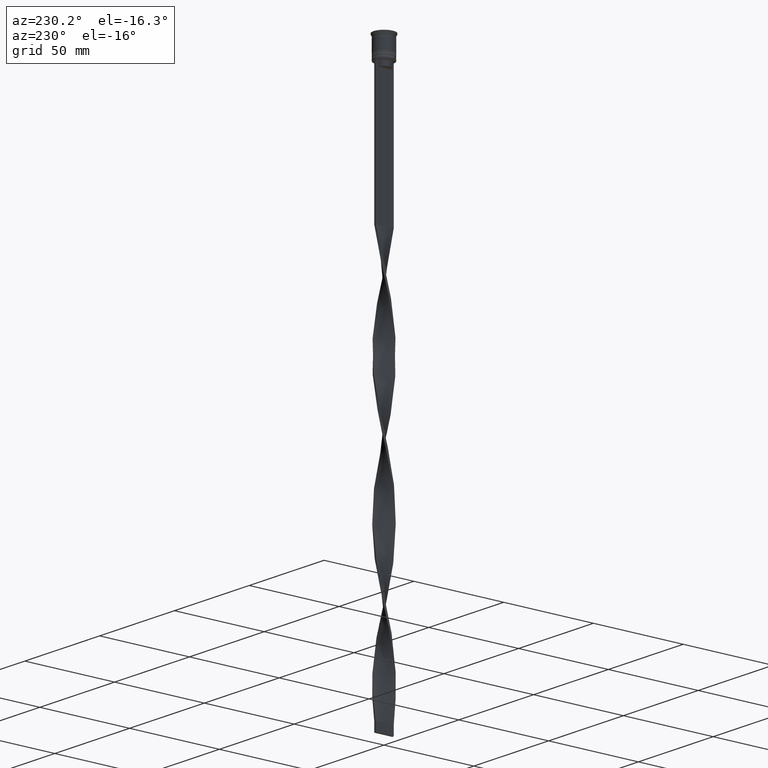
[diagram: clean part render]
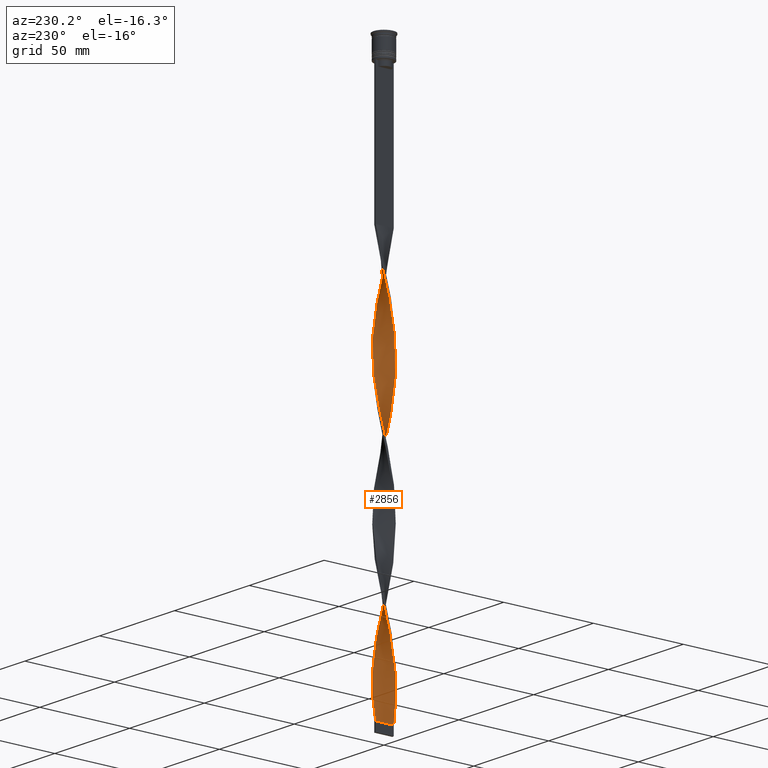
[diagram: same view with one face highlighted and labeled with its STEP entity id]
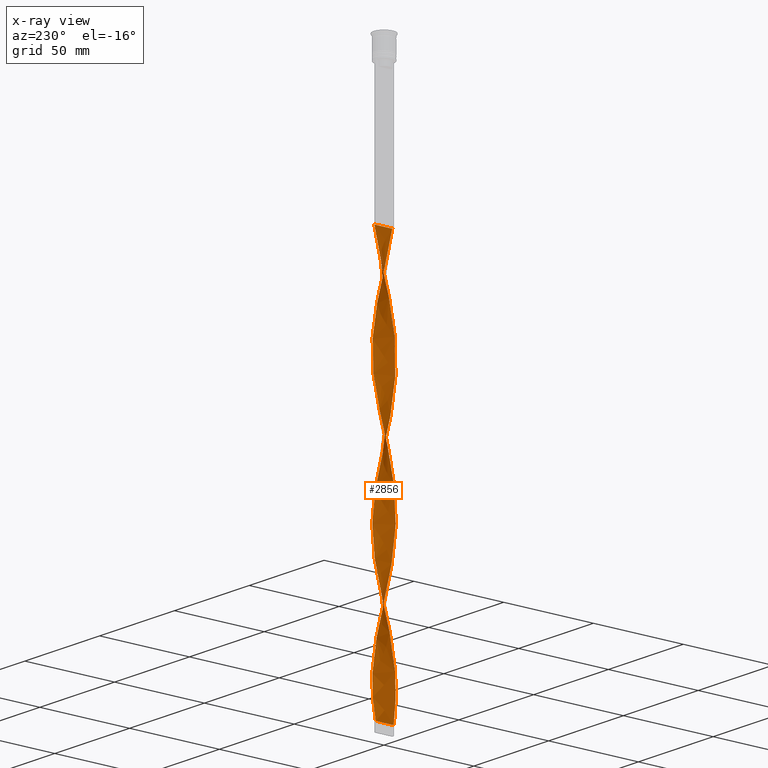
[diagram: x-ray of the same camera — body ghosted, the highlighted face saturated]
A machine part, auxiliary view. The second image highlights one B-rep face of the part: STEP entity #2856.
The next image is the same camera in x-ray: the body ghosted, the highlighted face saturated — about 0% of this face is hidden behind the body in this view.
In plain terms, the highlighted face is a freeform B-spline surface patch.
Its self-contained STEP definition (entity closure, byte-faithful):
#7 = CARTESIAN_POINT ( 'NONE',  ( -4.459306470373857856, -2.316157551480869881, -136.5175438596491233 ) ) ;
#11 = CARTESIAN_POINT ( 'NONE',  ( 2.819473840788611962, -4.159395059513907533, -97.65789473684209554 ) ) ;
#18 = CARTESIAN_POINT ( 'NONE',  ( -0.3297922997023085001, 5.014103812153980044, -89.88596491228069851 ) ) ;
#30 = CARTESIAN_POINT ( 'NONE',  ( -5.017136063310728034, 0.5017136063310729810, -122.9166666666666714 ) ) ;
#33 = CARTESIAN_POINT ( 'NONE',  ( 0.7452727871507842661, 4.986776443082572285, -154.0043859649122737 ) ) ;
#49 = CARTESIAN_POINT ( 'NONE',  ( -0.4999999999999993339, 4.999999999999999112, -307.5000000000000000 ) ) ;
#50 = CARTESIAN_POINT ( 'NONE',  ( -4.378018920948803405, 2.466363786592376872, -113.2017543859649180 ) ) ;
#52 = CARTESIAN_POINT ( 'NONE',  ( -4.378018920948801629, -2.466363786592375984, -206.4649122807017534 ) ) ;
#57 = CARTESIAN_POINT ( 'NONE',  ( -3.767136494507089317, -3.351425585076241553, -142.3464912280701355 ) ) ;
#64 = CARTESIAN_POINT ( 'NONE',  ( -4.779714345601773218, -1.550590459937317700, -132.6315789473684390 ) ) ;
#68 = CARTESIAN_POINT ( 'NONE',  ( 3.028891101531455021, 4.031028344680095188, -290.0131578947368212 ) ) ;
#74 = CARTESIAN_POINT ( 'NONE',  ( 3.028891101531455465, -4.031028344680097852, -177.3201754385964932 ) ) ;
#88 = CARTESIAN_POINT ( 'NONE',  ( -1.316153603105031378, -4.849509221873245401, -155.9473684210526017 ) ) ;
#90 = CARTESIAN_POINT ( 'NONE',  ( -3.028891101531457242, -4.031028344680093412, -216.1798245614035068 ) ) ;
#107 = CARTESIAN_POINT ( 'NONE',  ( 4.779714345601771441, -1.550590459937318588, -260.8684210526315610 ) ) ;
#113 = CARTESIAN_POINT ( 'NONE',  ( 2.819473840788615515, 4.159395059513907533, -222.0087719298245759 ) ) ;
#128 = CARTESIAN_POINT ( 'NONE',  ( -4.267384183849969759, -2.685666220508038382, -286.1271929824561653 ) ) ;
#131 = CARTESIAN_POINT ( 'NONE',  ( -0.4999999999999993339, 4.999999999999999112, -307.5000000000000000 ) ) ;
#151 = CARTESIAN_POINT ( 'NONE',  ( 4.459306470373856079, -2.316157551480869881, -109.3157894736842053 ) ) ;
#152 = CARTESIAN_POINT ( 'NONE',  ( -4.267384183849968871, -2.685666220508038382, -286.1271929824561653 ) ) ;
#153 = CARTESIAN_POINT ( 'NONE',  ( -2.676493308750143019, 4.252808903326802614, -249.2105263157894797 ) ) ;
#165 = CARTESIAN_POINT ( 'NONE',  ( -4.866129521283640180, 1.320664341398920971, -266.6973684210526017 ) ) ;
#168 = CARTESIAN_POINT ( 'NONE',  ( 4.582387650968867021, -2.103590795948402370, -188.9780701754386314 ) ) ;
#185 = CARTESIAN_POINT ( 'NONE',  ( -4.941632792297183663, 0.9111889738649969761, -268.6403508771929296 ) ) ;
#186 = CARTESIAN_POINT ( 'NONE',  ( 4.908199934305800483, 1.154532037420934687, -204.5219298245614254 ) ) ;
#196 = CARTESIAN_POINT ( 'NONE',  ( -4.908199934305798706, 1.154532037420935797, -188.9780701754386030 ) ) ;
#207 = CARTESIAN_POINT ( 'NONE',  ( 4.017260339178528206, -3.018545902792139302, -105.4298245614034926 ) ) ;
#208 = CARTESIAN_POINT ( 'NONE',  ( -0.7452727871507827118, 4.986776443082574062, -239.4956140350876979 ) ) ;
#209 = CARTESIAN_POINT ( 'NONE',  ( -4.378018920948803405, 2.466363786592376872, -260.8684210526315610 ) ) ;
#215 = CARTESIAN_POINT ( 'NONE',  ( -4.378018920948801629, -2.466363786592375984, -206.4649122807017534 ) ) ;
#227 = CARTESIAN_POINT ( 'NONE',  ( 5.031288212228302470, -0.3309225680477264619, -119.0307017543859587 ) ) ;
#228 = CARTESIAN_POINT ( 'NONE',  ( -1.555904663195417426, 4.796095443128456814, -243.3815789473684106 ) ) ;
#229 = CARTESIAN_POINT ( 'NONE',  ( -5.031288212228302470, 0.3309225680477291820, -192.8640350877193157 ) ) ;
#235 = CARTESIAN_POINT ( 'NONE',  ( -3.912358312251429826, -3.153324029743396650, -210.3508771929824661 ) ) ;
#247 = CARTESIAN_POINT ( 'NONE',  ( -4.941632792297182775, -0.9111889738649967541, -198.6929824561403564 ) ) ;
#254 = CARTESIAN_POINT ( 'NONE',  ( -2.676493308750143019, -4.252808903326800838, -218.1228070175438631 ) ) ;
#267 = CARTESIAN_POINT ( 'NONE',  ( 4.267384183849967982, -2.685666220508037494, -107.3728070175438631 ) ) ;
#271 = CARTESIAN_POINT ( 'NONE',  ( -3.164131141785982759, -3.925766796198028263, -146.2324561403508483 ) ) ;
#274 = CARTESIAN_POINT ( 'NONE',  ( 4.582387650968865245, 2.103590795948400594, -278.3552631578947398 ) ) ;
#284 = CARTESIAN_POINT ( 'NONE',  ( -4.017260339178526429, 3.018545902792141078, -179.2631578947368496 ) ) ;
#296 = CARTESIAN_POINT ( 'NONE',  ( 3.164131141785981871, -3.925766796198026487, -247.2675438596491233 ) ) ;
#301 = CARTESIAN_POINT ( 'NONE',  ( -3.339978767552788330, 3.754269813465271888, -105.4298245614034926 ) ) ;
#302 = CARTESIAN_POINT ( 'NONE',  ( 3.028891101531455021, 4.031028344680095188, -142.3464912280701355 ) ) ;
#313 = CARTESIAN_POINT ( 'NONE',  ( 2.096405966873734261, -4.566736473900831150, -241.4385964912280542 ) ) ;
#325 = CARTESIAN_POINT ( 'NONE',  ( -4.724258586126253157, 1.712127568673661671, -117.0877192982456023 ) ) ;
#329 = CARTESIAN_POINT ( 'NONE',  ( -2.676493308750143019, -4.252808903326800838, -218.1228070175438631 ) ) ;
#347 = CARTESIAN_POINT ( 'NONE',  ( -2.324095515968829684, 4.474589461973509152, -99.60087719298246611 ) ) ;
#349 = CARTESIAN_POINT ( 'NONE',  ( 4.908199934305798706, -1.154532037420935353, -262.8114035087720026 ) ) ;
#360 = CARTESIAN_POINT ( 'NONE',  ( 5.024212137769514364, 0.08539551914167299584, -268.6403508771929296 ) ) ;
#369 = CARTESIAN_POINT ( 'NONE',  ( 3.339978767552787886, 3.754269813465269223, -288.0701754385964932 ) ) ;
#375 = CARTESIAN_POINT ( 'NONE',  ( 1.555904663195416759, -4.796095443128456814, -169.5482456140350962 ) ) ;
#388 = CARTESIAN_POINT ( 'NONE',  ( 1.150588725173100180, -4.891435943105515882, -167.6052631578947398 ) ) ;
#392 = CARTESIAN_POINT ( 'NONE',  ( -4.724258586126253157, -1.712127568673659006, -202.5789473684210407 ) ) ;
#400 = CARTESIAN_POINT ( 'NONE',  ( 4.378018920948802517, -2.466363786592378204, -187.0350877192982466 ) ) ;
#420 = CARTESIAN_POINT ( 'NONE',  ( 4.908199934305800483, 1.154532037420934687, -204.5219298245613970 ) ) ;
#436 = CARTESIAN_POINT ( 'NONE',  ( -0.08568818774616768219, -5.041431181225384250, -161.7763157894736707 ) ) ;
#439 = CARTESIAN_POINT ( 'NONE',  ( 0.5000000000000000000, 5.000000000000000888, -233.6666666666666572 ) ) ;
#455 = CARTESIAN_POINT ( 'NONE',  ( 0.9143118122538362869, 4.958568818774617526, -231.7236842105263008 ) ) ;
#468 = CARTESIAN_POINT ( 'NONE',  ( -0.4999999999999993339, 4.999999999999999112, -159.8333333333333144 ) ) ;
#478 = CARTESIAN_POINT ( 'NONE',  ( -3.028891101531455909, 4.031028344680096076, -251.1535087719297792 ) ) ;
#479 = CARTESIAN_POINT ( 'NONE',  ( -4.017260339178529982, -3.018545902792138858, -288.0701754385964932 ) ) ;
#484 = CARTESIAN_POINT ( 'NONE',  ( -2.474816539791240722, 4.393023322829789024, -169.5482456140350962 ) ) ;
#490 =( BOUNDED_SURFACE ( )  B_SPLINE_SURFACE ( 1, 2, ( 
 ( #3377, #1841, #1578, #2523, #958, #3057, #2824, #347, #2220, #657, #301, #2154, #3399, #3357, #50, #3416, #325, #1530, #2760, #30, #1271, #3070, #2499, #679, #64, #1290, #7, #1235, #3724, #1254, #1007, #696, #3127, #1511, #2743, #1619, #88, #2852, #1312, #1944, #1023, #2240, #388, #2544, #3740, #3436, #714, #1987, #3243, #826, #1704, #499, #1412, #168, #1121, #2023, #3227, #2038, #842, #3543, #2593, #186, #1720, #3782, #1373, #514, #2357, #3190, #785, #1392, #1063, #2929, #2005, #1101, #2671, #455, #439, #2610, #2321, #2948, #2651, #1741, #2893, #1438, #153, #3842, #2337, #2970, #3797, #1688, #209, #3863, #1137, #2913, #1078, #2281, #3561, #2298, #809, #3527, #2057, #1663, #3212, #128, #479, #3502, #2630, #1358, #3484, #765, #3813, #560, #3880, #2761, #3002 ),
 ( #1471, #540, #2707, #1238, #3903, #2744, #11, #2463, #3937, #596, #2440, #267, #3040, #923, #883, #2099, #3322, #614, #3059, #3301, #2079, #1155, #1798, #1213, #1782, #2402, #1199, #3584, #1826, #302, #2728, #2380, #2138, #2114, #3659, #2420, #868, #1181, #1513, #3599, #3621, #941, #574, #2689, #3287, #3022, #1496, #3918, #284, #3642, #3343, #898, #2984, #1457, #1843, #229, #1532, #3266, #247, #1761, #392, #2480, #52, #3378, #1582, #2564, #3418, #90, #329, #1315, #3359, #2869, #1600, #1273, #661, #1026, #3110, #1890, #2502, #1559, #988, #3700, #1255, #681, #717, #3679, #962, #3096, #2177, #2827, #107, #349, #2807, #2546, #1947, #2202, #632, #1294, #3401, #1908, #3128, #1623, #1330, #2791, #369, #68, #2526, #3726, #3758, #1008, #2222, #2156, #3741, #699, #1926 ) ),
 .UNSPECIFIED., .F., .F., .F. ) 
 B_SPLINE_SURFACE_WITH_KNOTS ( ( 2, 2 ),
 ( 3, 2, 2, 2, 2, 2, 2, 2, 2, 2, 2, 2, 2, 2, 2, 2, 2, 2, 2, 2, 2, 2, 2, 2, 2, 2, 2, 2, 2, 2, 2, 2, 2, 2, 2, 2, 2, 2, 2, 2, 2, 2, 2, 2, 2, 2, 2, 2, 2, 2, 2, 2, 2, 2, 2, 2, 2, 3 ),
 ( 0.000000000000000000, 1.000000000000000000 ),
 ( 0.000000000000000000, 0.01315789473684210453, 0.02631578947368420907, 0.03947368421052631360, 0.05263157894736841813, 0.06578947368421052266, 0.07894736842105262720, 0.09210526315789473173, 0.1052631578947368363, 0.1184210526315789408, 0.1315789473684210453, 0.1447368421052631637, 0.1578947368421052544, 0.1710526315789473728, 0.1842105263157894635, 0.1973684210526315819, 0.2105263157894736725, 0.2236842105263157909, 0.2368421052631578816, 0.2500000000000000000, 0.2631578947368420907, 0.2763157894736842368, 0.2894736842105263275, 0.3026315789473684181, 0.3157894736842105088, 0.3289473684210526550, 0.3421052631578947456, 0.3552631578947368363, 0.3684210526315789269, 0.3815789473684210731, 0.3947368421052631637, 0.4078947368421052544, 0.4210526315789473450, 0.4342105263157894912, 0.4473684210526315819, 0.4605263157894736725, 0.4736842105263157632, 0.4868421052631579093, 0.5000000000000000000, 0.5131578947368421462, 0.5263157894736841813, 0.5394736842105263275, 0.5526315789473684736, 0.5657894736842105088, 0.5789473684210526550, 0.5921052631578946901, 0.6052631578947368363, 0.6184210526315789824, 0.6315789473684210176, 0.6447368421052631637, 0.6578947368421053099, 0.6710526315789473450, 0.6842105263157894912, 0.6973684210526315264, 0.7105263157894736725, 0.7236842105263158187, 0.7368421052631578538, 0.7500000000000000000 ),
 .UNSPECIFIED. ) 
 GEOMETRIC_REPRESENTATION_ITEM ( )  RATIONAL_B_SPLINE_SURFACE ( (
 ( 1.000000000000000000, 0.9965844930066698470, 1.000000000000000000, 0.9965844930066698470, 1.000000000000000000, 0.9965844930066698470, 1.000000000000000000, 0.9965844930066698470, 1.000000000000000000, 0.9965844930066698470, 1.000000000000000000, 0.9965844930066698470, 1.000000000000000000, 0.9965844930066698470, 1.000000000000000000, 0.9965844930066698470, 1.000000000000000000, 0.9965844930066698470, 1.000000000000000000, 0.9965844930066698470, 1.000000000000000000, 0.9965844930066698470, 1.000000000000000000, 0.9965844930066698470, 1.000000000000000000, 0.9965844930066698470, 1.000000000000000000, 0.9965844930066698470, 1.000000000000000000, 0.9965844930066698470, 1.000000000000000000, 0.9965844930066698470, 1.000000000000000000, 0.9965844930066698470, 1.000000000000000000, 0.9965844930066698470, 1.000000000000000000, 0.9965844930066698470, 1.000000000000000000, 0.9965844930066698470, 1.000000000000000000, 0.9965844930066698470, 1.000000000000000000, 0.9965844930066698470, 1.000000000000000000, 0.9965844930066698470, 1.000000000000000000, 0.9965844930066698470, 1.000000000000000000, 0.9965844930066698470, 1.000000000000000000, 0.9965844930066698470, 1.000000000000000000, 0.9965844930066698470, 1.000000000000000000, 0.9965844930066698470, 1.000000000000000000, 0.9965844930066698470, 1.000000000000000000, 0.9965844930066698470, 1.000000000000000000, 0.9965844930066698470, 1.000000000000000000, 0.9965844930066698470, 1.000000000000000000, 0.9965844930066698470, 1.000000000000000000, 0.9965844930066698470, 1.000000000000000000, 0.9965844930066698470, 1.000000000000000000, 0.9965844930066698470, 1.000000000000000000, 0.9965844930066698470, 1.000000000000000000, 0.9965844930066698470, 1.000000000000000000, 0.9965844930066698470, 1.000000000000000000, 0.9965844930066698470, 1.000000000000000000, 0.9965844930066698470, 1.000000000000000000, 0.9965844930066698470, 1.000000000000000000, 0.9965844930066698470, 1.000000000000000000, 0.9965844930066698470, 1.000000000000000000, 0.9965844930066698470, 1.000000000000000000, 0.9965844930066698470, 1.000000000000000000, 0.9965844930066698470, 1.000000000000000000, 0.9965844930066698470, 1.000000000000000000, 0.9965844930066698470, 1.000000000000000000, 0.9965844930066698470, 1.000000000000000000, 0.9965844930066698470, 1.000000000000000000, 0.9965844930066698470, 1.000000000000000000, 0.9965844930066698470, 1.000000000000000000, 0.9965844930066698470, 1.000000000000000000, 0.9965844930066698470, 1.000000000000000000, 0.9965844930066698470, 1.000000000000000000, 0.9965844930066698470, 1.000000000000000000),
 ( 1.000000000000000000, 0.9965844930066698470, 1.000000000000000000, 0.9965844930066698470, 1.000000000000000000, 0.9965844930066698470, 1.000000000000000000, 0.9965844930066698470, 1.000000000000000000, 0.9965844930066698470, 1.000000000000000000, 0.9965844930066698470, 1.000000000000000000, 0.9965844930066698470, 1.000000000000000000, 0.9965844930066698470, 1.000000000000000000, 0.9965844930066698470, 1.000000000000000000, 0.9965844930066698470, 1.000000000000000000, 0.9965844930066698470, 1.000000000000000000, 0.9965844930066698470, 1.000000000000000000, 0.9965844930066698470, 1.000000000000000000, 0.9965844930066698470, 1.000000000000000000, 0.9965844930066698470, 1.000000000000000000, 0.9965844930066698470, 1.000000000000000000, 0.9965844930066698470, 1.000000000000000000, 0.9965844930066698470, 1.000000000000000000, 0.9965844930066698470, 1.000000000000000000, 0.9965844930066698470, 1.000000000000000000, 0.9965844930066698470, 1.000000000000000000, 0.9965844930066698470, 1.000000000000000000, 0.9965844930066698470, 1.000000000000000000, 0.9965844930066698470, 1.000000000000000000, 0.9965844930066698470, 1.000000000000000000, 0.9965844930066698470, 1.000000000000000000, 0.9965844930066698470, 1.000000000000000000, 0.9965844930066698470, 1.000000000000000000, 0.9965844930066698470, 1.000000000000000000, 0.9965844930066698470, 1.000000000000000000, 0.9965844930066698470, 1.000000000000000000, 0.9965844930066698470, 1.000000000000000000, 0.9965844930066698470, 1.000000000000000000, 0.9965844930066698470, 1.000000000000000000, 0.9965844930066698470, 1.000000000000000000, 0.9965844930066698470, 1.000000000000000000, 0.9965844930066698470, 1.000000000000000000, 0.9965844930066698470, 1.000000000000000000, 0.9965844930066698470, 1.000000000000000000, 0.9965844930066698470, 1.000000000000000000, 0.9965844930066698470, 1.000000000000000000, 0.9965844930066698470, 1.000000000000000000, 0.9965844930066698470, 1.000000000000000000, 0.9965844930066698470, 1.000000000000000000, 0.9965844930066698470, 1.000000000000000000, 0.9965844930066698470, 1.000000000000000000, 0.9965844930066698470, 1.000000000000000000, 0.9965844930066698470, 1.000000000000000000, 0.9965844930066698470, 1.000000000000000000, 0.9965844930066698470, 1.000000000000000000, 0.9965844930066698470, 1.000000000000000000, 0.9965844930066698470, 1.000000000000000000, 0.9965844930066698470, 1.000000000000000000, 0.9965844930066698470, 1.000000000000000000, 0.9965844930066698470, 1.000000000000000000, 0.9965844930066698470, 1.000000000000000000, 0.9965844930066698470, 1.000000000000000000) ) ) 
 REPRESENTATION_ITEM ( '' )  SURFACE ( )  );
#497 = CARTESIAN_POINT ( 'NONE',  ( -5.024212137769516140, 0.08539551914167348157, -272.5263157894737560 ) ) ;
#499 = CARTESIAN_POINT ( 'NONE',  ( 4.173650190928738901, -2.829136777236352707, -185.0921052631579187 ) ) ;
#512 = EDGE_CURVE ( 'NONE', #2726, #1737, #3900, .T. ) ;
#514 = CARTESIAN_POINT ( 'NONE',  ( 4.267384183849969759, 2.685666220508037938, -212.2938596491228225 ) ) ;
#529 = CARTESIAN_POINT ( 'NONE',  ( -5.031288212228302470, 0.3309225680477291820, -192.8640350877192873 ) ) ;
#539 = CARTESIAN_POINT ( 'NONE',  ( 2.474816539791241166, -4.393023322829789024, -95.71491228070175339 ) ) ;
#540 = CARTESIAN_POINT ( 'NONE',  ( 0.9143118122538338444, -4.958568818774616638, -87.94298245614032794 ) ) ;
#548 = CARTESIAN_POINT ( 'NONE',  ( -4.651228756897742400, 1.946648882453704488, -185.0921052631578902 ) ) ;
#558 = CARTESIAN_POINT ( 'NONE',  ( 4.173650190928738901, 2.829136777236350042, -134.5745614035087385 ) ) ;
#559 = CARTESIAN_POINT ( 'NONE',  ( -0.3297922997023085001, 5.014103812153980044, -237.5526315789473699 ) ) ;
#560 = CARTESIAN_POINT ( 'NONE',  ( -1.717995393956229355, -4.740449624971875053, -301.6710526315789593 ) ) ;
#574 = CARTESIAN_POINT ( 'NONE',  ( -2.096405966873734261, 4.566736473900831150, -167.6052631578947398 ) ) ;
#580 = CARTESIAN_POINT ( 'NONE',  ( -3.339978767552790107, -3.754269813465268335, -214.2368421052631788 ) ) ;
#596 = CARTESIAN_POINT ( 'NONE',  ( 3.767136494507087541, -3.351425585076240665, -103.4868421052631646 ) ) ;
#605 = CARTESIAN_POINT ( 'NONE',  ( 4.378018920948802517, 2.466363786592374652, -280.2982456140351246 ) ) ;
#614 = CARTESIAN_POINT ( 'NONE',  ( 5.031288212228302470, -0.3309225680477264619, -119.0307017543859729 ) ) ;
#619 = CARTESIAN_POINT ( 'NONE',  ( -5.031288212228305134, -0.3309225680477259068, -126.8026315789473273 ) ) ;
#632 = CARTESIAN_POINT ( 'NONE',  ( 4.941632792297182775, 0.9111889738649961989, -272.5263157894737560 ) ) ;
#644 = CARTESIAN_POINT ( 'NONE',  ( 3.767136494507087541, -3.351425585076240221, -251.1535087719297792 ) ) ;
#657 = CARTESIAN_POINT ( 'NONE',  ( -3.028891101531455909, 4.031028344680096076, -103.4868421052631646 ) ) ;
#660 = CARTESIAN_POINT ( 'NONE',  ( -3.465633818146535372, 3.638596190637134242, -175.3771929824561369 ) ) ;
#661 = CARTESIAN_POINT ( 'NONE',  ( -0.3297922997023116642, -5.014103812153977380, -229.7807017543859729 ) ) ;
#667 = CARTESIAN_POINT ( 'NONE',  ( -4.866129521283640180, 1.320664341398920971, -119.0307017543859587 ) ) ;
#672 = CARTESIAN_POINT ( 'NONE',  ( 4.969744073267051476, -0.7427273027343307410, -264.7543859649122737 ) ) ;
#679 = CARTESIAN_POINT ( 'NONE',  ( -4.908199934305800483, -1.154532037420935353, -130.6885964912280258 ) ) ;
#681 = CARTESIAN_POINT ( 'NONE',  ( 3.164131141785981871, -3.925766796198026487, -247.2675438596491517 ) ) ;
#686 = CARTESIAN_POINT ( 'NONE',  ( 4.779714345601773218, 1.550590459937319476, -206.4649122807017534 ) ) ;
#695 = ORIENTED_EDGE ( 'NONE', *, *, #3481, .F. ) ;
#696 = CARTESIAN_POINT ( 'NONE',  ( -3.164131141785982759, -3.925766796198028263, -146.2324561403508483 ) ) ;
#699 = CARTESIAN_POINT ( 'NONE',  ( -0.08568818774616443479, 5.041431181225382474, -305.5570175438596721 ) ) ;
#704 = CARTESIAN_POINT ( 'NONE',  ( 2.324095515968828352, -4.474589461973509152, -173.4342105263158089 ) ) ;
#714 = CARTESIAN_POINT ( 'NONE',  ( 2.676493308750143019, -4.252808903326802614, -175.3771929824561369 ) ) ;
#717 = CARTESIAN_POINT ( 'NONE',  ( 3.465633818146535372, -3.638596190637133354, -249.2105263157894797 ) ) ;
#726 = CARTESIAN_POINT ( 'NONE',  ( 0.7452727871507813795, -4.986776443082574950, -165.6622807017543835 ) ) ;
#731 = CARTESIAN_POINT ( 'NONE',  ( 2.324095515968828352, 4.474589461973507376, -293.8991228070175907 ) ) ;
#746 = CARTESIAN_POINT ( 'NONE',  ( 1.150588725173100180, -4.891435943105515882, -167.6052631578947398 ) ) ;
#763 = CARTESIAN_POINT ( 'NONE',  ( 4.267384183849967094, -2.685666220508037494, -107.3728070175438489 ) ) ;
#764 = CARTESIAN_POINT ( 'NONE',  ( 4.969744073267053253, 0.7427273027343290757, -202.5789473684210407 ) ) ;
#765 = CARTESIAN_POINT ( 'NONE',  ( -2.474816539791244274, -4.393023322829789912, -297.7850877192982466 ) ) ;
#771 = CARTESIAN_POINT ( 'NONE',  ( 1.150588725173100624, 4.891435943105514106, -152.0614035087719174 ) ) ;
#774 = CARTESIAN_POINT ( 'NONE',  ( -0.4999999999999997780, 1.666666666666666075, -307.5000000000000000 ) ) ;
#776 =( BOUNDED_CURVE ( )  B_SPLINE_CURVE ( 2, ( #1896, #1519, #18, #1244, #2487, #3686, #3943, #2470, #929, #2751, #2145, #1804, #1586, #3922, #2182, #2425, #3665, #667, #2163, #3626, #3348, #619, #2813, #3027, #3363, #2405, #1567, #2797, #1263, #57, #3604, #271, #1501, #2732, #3763, #1969, #2266, #3421, #3730, #436, #2892, #726, #746, #375, #1662, #704, #3115, #74, #3157, #1062, #3134, #997, #400, #1686, #2858, #1357, #1985, #3406, #2592, #2570, #764, #420, #686, #1013, #1319, #2552, #3746, #1030, #1646, #2875, #113, #1335, #2356, #783, #2983, #1739, #3265, #2670, #559, #208, #2320, #228, #1437, #867, #3862, #478, #2021, #841, #3526, #2688, #2078, #2947, #3500, #165, #185, #2336, #497, #3879, #1154, #2378, #3583, #1781, #1703, #152, #1390, #2629, #3841, #1410, #3811, #1719, #2650, #1120, #3720, #1921, #3320 ),
 .UNSPECIFIED., .F., .T. ) 
 B_SPLINE_CURVE_WITH_KNOTS ( ( 3, 2, 2, 2, 2, 2, 2, 2, 2, 2, 2, 2, 2, 2, 2, 2, 2, 2, 2, 2, 2, 2, 2, 2, 2, 2, 2, 2, 2, 2, 2, 2, 2, 2, 2, 2, 2, 2, 2, 2, 2, 2, 2, 2, 2, 2, 2, 2, 2, 2, 2, 2, 2, 2, 2, 2, 2, 3 ),
 ( 0.000000000000000000, 0.01315789473684210453, 0.02631578947368420907, 0.03947368421052631360, 0.05263157894736841813, 0.06578947368421052266, 0.07894736842105262720, 0.09210526315789473173, 0.1052631578947368363, 0.1184210526315789408, 0.1315789473684210453, 0.1447368421052631637, 0.1578947368421052544, 0.1710526315789473728, 0.1842105263157894635, 0.1973684210526315541, 0.2105263157894736725, 0.2236842105263157909, 0.2368421052631578816, 0.2500000000000000000, 0.2631578947368420907, 0.2763157894736842368, 0.2894736842105263275, 0.3026315789473684181, 0.3157894736842105088, 0.3289473684210526550, 0.3421052631578947456, 0.3552631578947368918, 0.3684210526315789269, 0.3815789473684210731, 0.3947368421052631082, 0.4078947368421052544, 0.4210526315789473450, 0.4342105263157895467, 0.4473684210526315819, 0.4605263157894736725, 0.4736842105263157632, 0.4868421052631579093, 0.5000000000000000000, 0.5131578947368421462, 0.5263157894736841813, 0.5394736842105263275, 0.5526315789473684736, 0.5657894736842105088, 0.5789473684210526550, 0.5921052631578946901, 0.6052631578947368363, 0.6184210526315789824, 0.6315789473684210176, 0.6447368421052631637, 0.6578947368421053099, 0.6710526315789473450, 0.6842105263157894912, 0.6973684210526315264, 0.7105263157894737835, 0.7236842105263158187, 0.7368421052631578538, 0.7500000000000000000 ),
 .UNSPECIFIED. ) 
 CURVE ( )  GEOMETRIC_REPRESENTATION_ITEM ( )  RATIONAL_B_SPLINE_CURVE ( ( 1.000000000000000000, 0.9965844930066698470, 1.000000000000000000, 0.9965844930066698470, 1.000000000000000000, 0.9965844930066698470, 1.000000000000000000, 0.9965844930066698470, 1.000000000000000000, 0.9965844930066698470, 1.000000000000000000, 0.9965844930066698470, 1.000000000000000000, 0.9965844930066698470, 1.000000000000000000, 0.9965844930066698470, 1.000000000000000000, 0.9965844930066698470, 1.000000000000000000, 0.9965844930066698470, 1.000000000000000000, 0.9965844930066698470, 1.000000000000000000, 0.9965844930066698470, 1.000000000000000000, 0.9965844930066698470, 1.000000000000000000, 0.9965844930066698470, 1.000000000000000000, 0.9965844930066698470, 1.000000000000000000, 0.9965844930066698470, 1.000000000000000000, 0.9965844930066698470, 1.000000000000000000, 0.9965844930066698470, 1.000000000000000000, 0.9965844930066698470, 1.000000000000000000, 0.9965844930066698470, 1.000000000000000000, 0.9965844930066698470, 1.000000000000000000, 0.9965844930066698470, 1.000000000000000000, 0.9965844930066698470, 1.000000000000000000, 0.9965844930066698470, 1.000000000000000000, 0.9965844930066698470, 1.000000000000000000, 0.9965844930066698470, 1.000000000000000000, 0.9965844930066698470, 1.000000000000000000, 0.9965844930066698470, 1.000000000000000000, 0.9965844930066698470, 1.000000000000000000, 0.9965844930066698470, 1.000000000000000000, 0.9965844930066698470, 1.000000000000000000, 0.9965844930066698470, 1.000000000000000000, 0.9965844930066698470, 1.000000000000000000, 0.9965844930066698470, 1.000000000000000000, 0.9965844930066698470, 1.000000000000000000, 0.9965844930066698470, 1.000000000000000000, 0.9965844930066698470, 1.000000000000000000, 0.9965844930066698470, 1.000000000000000000, 0.9965844930066698470, 1.000000000000000000, 0.9965844930066698470, 1.000000000000000000, 0.9965844930066698470, 1.000000000000000000, 0.9965844930066698470, 1.000000000000000000, 0.9965844930066698470, 1.000000000000000000, 0.9965844930066698470, 1.000000000000000000, 0.9965844930066698470, 1.000000000000000000, 0.9965844930066698470, 1.000000000000000000, 0.9965844930066698470, 1.000000000000000000, 0.9965844930066698470, 1.000000000000000000, 0.9965844930066698470, 1.000000000000000000, 0.9965844930066698470, 1.000000000000000000, 0.9965844930066698470, 1.000000000000000000, 0.9965844930066698470, 1.000000000000000000, 0.9965844930066698470, 1.000000000000000000, 0.9965844930066698470, 1.000000000000000000, 0.9965844930066698470, 1.000000000000000000, 0.9965844930066698470, 1.000000000000000000, 0.9965844930066698470, 1.000000000000000000 ) ) 
 REPRESENTATION_ITEM ( '' )  );
#783 = CARTESIAN_POINT ( 'NONE',  ( 1.717995393956227579, 4.740449624971874165, -227.8377192982456165 ) ) ;
#785 = CARTESIAN_POINT ( 'NONE',  ( 3.465633818146537592, 3.638596190637133354, -218.1228070175438631 ) ) ;
#809 = CARTESIAN_POINT ( 'NONE',  ( -4.969744073267052364, -0.7427273027343305190, -276.4122807017544119 ) ) ;
#816 = CARTESIAN_POINT ( 'NONE',  ( -3.767136494507087541, 3.351425585076241553, -177.3201754385964932 ) ) ;
#826 = CARTESIAN_POINT ( 'NONE',  ( 3.651066433574119863, -3.477511282250448144, -181.2061403508771775 ) ) ;
#841 = CARTESIAN_POINT ( 'NONE',  ( -3.651066433574120751, 3.477511282250446811, -255.0394736842104919 ) ) ;
#842 = CARTESIAN_POINT ( 'NONE',  ( 5.024212137769516140, -0.08539551914167299584, -198.6929824561403564 ) ) ;
#845 = EDGE_CURVE ( 'NONE', #2094, #2753, #776, .T. ) ;
#867 = CARTESIAN_POINT ( 'NONE',  ( -2.324095515968829240, 4.474589461973509152, -247.2675438596491233 ) ) ;
#868 = CARTESIAN_POINT ( 'NONE',  ( 0.3297922997023089442, 5.014103812153978268, -155.9473684210526017 ) ) ;
#883 = CARTESIAN_POINT ( 'NONE',  ( 4.779714345601771441, -1.550590459937318588, -113.2017543859649180 ) ) ;
#898 = CARTESIAN_POINT ( 'NONE',  ( -4.651228756897743288, 1.946648882453704710, -185.0921052631579187 ) ) ;
#907 = CARTESIAN_POINT ( 'NONE',  ( 5.017136063310725369, 0.5017136063310723149, -270.5833333333333144 ) ) ;
#923 = CARTESIAN_POINT ( 'NONE',  ( 4.651228756897745065, -1.946648882453702267, -111.2587719298245617 ) ) ;
#929 = CARTESIAN_POINT ( 'NONE',  ( -2.676493308750143019, 4.252808903326802614, -101.5438596491227941 ) ) ;
#941 = CARTESIAN_POINT ( 'NONE',  ( -1.717995393956225580, 4.740449624971874165, -165.6622807017543835 ) ) ;
#958 = CARTESIAN_POINT ( 'NONE',  ( -1.150588725173100402, 4.891435943105515882, -93.77192982456139703 ) ) ;
#961 = CARTESIAN_POINT ( 'NONE',  ( 1.555904663195419424, 4.796095443128454150, -150.1184210526315610 ) ) ;
#962 = CARTESIAN_POINT ( 'NONE',  ( 4.017260339178528206, -3.018545902792139302, -253.0964912280702208 ) ) ;
#988 = CARTESIAN_POINT ( 'NONE',  ( 2.096405966873734261, -4.566736473900831150, -241.4385964912280542 ) ) ;
#997 = CARTESIAN_POINT ( 'NONE',  ( 4.173650190928738901, -2.829136777236353151, -185.0921052631578902 ) ) ;
#1007 = CARTESIAN_POINT ( 'NONE',  ( -3.465633818146537148, -3.638596190637134242, -144.2894736842105203 ) ) ;
#1008 = CARTESIAN_POINT ( 'NONE',  ( 1.555904663195419646, 4.796095443128455038, -297.7850877192982466 ) ) ;
#1013 = CARTESIAN_POINT ( 'NONE',  ( 4.651228756897746841, 1.946648882453700047, -208.4078947368421098 ) ) ;
#1015 = CARTESIAN_POINT ( 'NONE',  ( -0.08568818774616442091, 5.041431181225382474, -305.5570175438596721 ) ) ;
#1023 = CARTESIAN_POINT ( 'NONE',  ( 0.3297922997023078895, -5.014103812153980044, -163.7192982456140555 ) ) ;
#1026 = CARTESIAN_POINT ( 'NONE',  ( 0.08568818774616383804, -5.041431181225382474, -231.7236842105263008 ) ) ;
#1030 = CARTESIAN_POINT ( 'NONE',  ( 3.767136494507091538, 3.351425585076239333, -216.1798245614035068 ) ) ;
#1037 = CARTESIAN_POINT ( 'NONE',  ( -0.5000000000000002220, -1.666666666666667851, -307.5000000000000000 ) ) ;
#1051 = CARTESIAN_POINT ( 'NONE',  ( 0.5000000000000000000, -4.999999999999999112, -86.00000000000000000 ) ) ;
#1062 = CARTESIAN_POINT ( 'NONE',  ( 3.651066433574119863, -3.477511282250448144, -181.2061403508771775 ) ) ;
#1063 = CARTESIAN_POINT ( 'NONE',  ( 2.819473840788615515, 4.159395059513907533, -222.0087719298245759 ) ) ;
#1075 = CARTESIAN_POINT ( 'NONE',  ( 5.024212137769514364, 0.08539551914167299584, -120.9736842105263150 ) ) ;
#1078 = CARTESIAN_POINT ( 'NONE',  ( -4.941632792297183663, 0.9111889738649969761, -268.6403508771929296 ) ) ;
#1080 = CARTESIAN_POINT ( 'NONE',  ( 3.028891101531455021, 4.031028344680095188, -290.0131578947368212 ) ) ;
#1086 = CARTESIAN_POINT ( 'NONE',  ( -1.717995393956225580, 4.740449624971873277, -165.6622807017543835 ) ) ;
#1098 = CARTESIAN_POINT ( 'NONE',  ( 1.717995393956226691, -4.740449624971872389, -91.82894736842104066 ) ) ;
#1101 = CARTESIAN_POINT ( 'NONE',  ( 1.717995393956227579, 4.740449624971875053, -227.8377192982456165 ) ) ;
#1109 = CARTESIAN_POINT ( 'NONE',  ( 0.08568818774616382417, -5.041431181225382474, -231.7236842105263008 ) ) ;
#1119 = CARTESIAN_POINT ( 'NONE',  ( 3.164131141785981871, -3.925766796198026487, -99.60087719298245190 ) ) ;
#1120 = CARTESIAN_POINT ( 'NONE',  ( -1.717995393956229355, -4.740449624971874165, -301.6710526315789593 ) ) ;
#1121 = CARTESIAN_POINT ( 'NONE',  ( 4.724258586126254045, -1.712127568673661004, -190.9210526315789309 ) ) ;
#1136 = CARTESIAN_POINT ( 'NONE',  ( 0.5000000000000000000, -4.999999999999999112, -86.00000000000000000 ) ) ;
#1137 = CARTESIAN_POINT ( 'NONE',  ( -4.724258586126253157, 1.712127568673661671, -264.7543859649122737 ) ) ;
#1143 = CARTESIAN_POINT ( 'NONE',  ( -4.173650190928739789, -2.829136777236347378, -208.4078947368421098 ) ) ;
#1154 = CARTESIAN_POINT ( 'NONE',  ( -4.969744073267052364, -0.7427273027343305190, -276.4122807017544119 ) ) ;
#1155 = CARTESIAN_POINT ( 'NONE',  ( 4.866129521283639292, 1.320664341398920083, -126.8026315789473273 ) ) ;
#1167 = CARTESIAN_POINT ( 'NONE',  ( -4.779714345601770553, 1.550590459937320587, -187.0350877192982466 ) ) ;
#1180 = CARTESIAN_POINT ( 'NONE',  ( 3.651066433574118975, 3.477511282250445923, -138.4605263157894512 ) ) ;
#1181 = CARTESIAN_POINT ( 'NONE',  ( -0.08568818774616443479, 5.041431181225382474, -157.8903508771930149 ) ) ;
#1189 = CARTESIAN_POINT ( 'NONE',  ( -2.324095515968828796, -4.474589461973507376, -220.0657894736842195 ) ) ;
#1198 = CARTESIAN_POINT ( 'NONE',  ( 4.582387650968865245, 2.103590795948400594, -130.6885964912280258 ) ) ;
#1199 = CARTESIAN_POINT ( 'NONE',  ( 3.912358312251428938, 3.153324029743397094, -136.5175438596491233 ) ) ;
#1213 = CARTESIAN_POINT ( 'NONE',  ( 4.582387650968865245, 2.103590795948400594, -130.6885964912280258 ) ) ;
#1235 = CARTESIAN_POINT ( 'NONE',  ( -4.267384183849969759, -2.685666220508038382, -138.4605263157894512 ) ) ;
#1238 = CARTESIAN_POINT ( 'NONE',  ( 1.717995393956226691, -4.740449624971873277, -91.82894736842104066 ) ) ;
#1244 = CARTESIAN_POINT ( 'NONE',  ( -0.7452727871507827118, 4.986776443082574062, -91.82894736842104066 ) ) ;
#1254 = CARTESIAN_POINT ( 'NONE',  ( -3.767136494507089317, -3.351425585076241997, -142.3464912280701355 ) ) ;
#1255 = CARTESIAN_POINT ( 'NONE',  ( 2.819473840788611962, -4.159395059513907533, -245.3245614035087669 ) ) ;
#1263 = CARTESIAN_POINT ( 'NONE',  ( -4.017260339178529982, -3.018545902792138858, -140.4035087719298076 ) ) ;
#1271 = CARTESIAN_POINT ( 'NONE',  ( -5.024212137769516140, 0.08539551914167348157, -124.8596491228069993 ) ) ;
#1273 = CARTESIAN_POINT ( 'NONE',  ( -0.7452727871507828228, -4.986776443082572285, -227.8377192982456165 ) ) ;
#1290 = CARTESIAN_POINT ( 'NONE',  ( -4.651228756897745953, -1.946648882453702711, -134.5745614035087385 ) ) ;
#1294 = CARTESIAN_POINT ( 'NONE',  ( 4.866129521283639292, 1.320664341398920083, -274.4692982456140840 ) ) ;
#1312 = CARTESIAN_POINT ( 'NONE',  ( -0.5000000000000006661, -5.000000000000000888, -159.8333333333333144 ) ) ;
#1315 = CARTESIAN_POINT ( 'NONE',  ( -2.324095515968829240, -4.474589461973508264, -220.0657894736842195 ) ) ;
#1319 = CARTESIAN_POINT ( 'NONE',  ( 4.459306470373858744, 2.316157551480868992, -210.3508771929824661 ) ) ;
#1324 = ORIENTED_EDGE ( 'NONE', *, *, #512, .T. ) ;
#1330 = CARTESIAN_POINT ( 'NONE',  ( 3.912358312251428938, 3.153324029743397094, -284.1842105263158373 ) ) ;
#1335 = CARTESIAN_POINT ( 'NONE',  ( 2.474816539791245162, 4.393023322829789912, -223.9517543859649038 ) ) ;
#1338 = LINE ( 'NONE', #1051, #2906 ) ;
#1357 = CARTESIAN_POINT ( 'NONE',  ( 4.866129521283640180, -1.320664341398923414, -192.8640350877192873 ) ) ;
#1358 = CARTESIAN_POINT ( 'NONE',  ( -3.164131141785982759, -3.925766796198028263, -293.8991228070175907 ) ) ;
#1373 = CARTESIAN_POINT ( 'NONE',  ( 4.459306470373858744, 2.316157551480868992, -210.3508771929824661 ) ) ;
#1390 = CARTESIAN_POINT ( 'NONE',  ( -4.017260339178529982, -3.018545902792138858, -288.0701754385964932 ) ) ;
#1392 = CARTESIAN_POINT ( 'NONE',  ( 3.164131141785983203, 3.925766796198028263, -220.0657894736842195 ) ) ;
#1410 = CARTESIAN_POINT ( 'NONE',  ( -3.164131141785982759, -3.925766796198028263, -293.8991228070175907 ) ) ;
#1412 = CARTESIAN_POINT ( 'NONE',  ( 4.378018920948802517, -2.466363786592378204, -187.0350877192982466 ) ) ;
#1424 = CARTESIAN_POINT ( 'NONE',  ( -5.024212137769514364, -0.08539551914167126112, -194.8070175438596436 ) ) ;
#1436 = CARTESIAN_POINT ( 'NONE',  ( 4.651228756897744177, -1.946648882453702267, -111.2587719298245617 ) ) ;
#1437 = CARTESIAN_POINT ( 'NONE',  ( -1.940000089582123666, 4.635342452550982983, -245.3245614035087669 ) ) ;
#1438 = CARTESIAN_POINT ( 'NONE',  ( -2.324095515968829684, 4.474589461973509152, -247.2675438596491517 ) ) ;
#1457 = CARTESIAN_POINT ( 'NONE',  ( -4.908199934305798706, 1.154532037420935797, -188.9780701754386314 ) ) ;
#1462 = CARTESIAN_POINT ( 'NONE',  ( -3.651066433574119863, -3.477511282250445035, -212.2938596491228225 ) ) ;
#1471 = CARTESIAN_POINT ( 'NONE',  ( 0.5000000000000000000, -4.999999999999999112, -86.00000000000000000 ) ) ;
#1496 = CARTESIAN_POINT ( 'NONE',  ( -3.465633818146535372, 3.638596190637134242, -175.3771929824561369 ) ) ;
#1501 = CARTESIAN_POINT ( 'NONE',  ( -2.819473840788613295, -4.159395059513908421, -148.1754385964912331 ) ) ;
#1511 = CARTESIAN_POINT ( 'NONE',  ( -2.474816539791244274, -4.393023322829789912, -150.1184210526315894 ) ) ;
#1513 = CARTESIAN_POINT ( 'NONE',  ( -0.4999999999999993339, 4.999999999999999112, -159.8333333333333144 ) ) ;
#1519 = CARTESIAN_POINT ( 'NONE',  ( 0.08568818774616604461, 5.041431181225384250, -87.94298245614034215 ) ) ;
#1530 = CARTESIAN_POINT ( 'NONE',  ( -4.866129521283640180, 1.320664341398920971, -119.0307017543859729 ) ) ;
#1532 = CARTESIAN_POINT ( 'NONE',  ( -5.024212137769514364, -0.08539551914167126112, -194.8070175438596436 ) ) ;
#1559 = CARTESIAN_POINT ( 'NONE',  ( 1.717995393956226691, -4.740449624971873277, -239.4956140350877263 ) ) ;
#1567 = CARTESIAN_POINT ( 'NONE',  ( -4.459306470373857856, -2.316157551480869881, -136.5175438596491233 ) ) ;
#1578 = CARTESIAN_POINT ( 'NONE',  ( -0.3297922997023085001, 5.014103812153980044, -89.88596491228069851 ) ) ;
#1582 = CARTESIAN_POINT ( 'NONE',  ( -3.912358312251429826, -3.153324029743396650, -210.3508771929824661 ) ) ;
#1586 = CARTESIAN_POINT ( 'NONE',  ( -3.912358312251429826, 3.153324029743399315, -109.3157894736842053 ) ) ;
#1589 = CARTESIAN_POINT ( 'NONE',  ( 4.941632792297182775, 0.9111889738649961989, -272.5263157894737560 ) ) ;
#1600 = CARTESIAN_POINT ( 'NONE',  ( -1.150588725173101068, -4.891435943105514106, -225.8947368421052602 ) ) ;
#1619 = CARTESIAN_POINT ( 'NONE',  ( -1.717995393956229355, -4.740449624971875053, -154.0043859649123021 ) ) ;
#1623 = CARTESIAN_POINT ( 'NONE',  ( 4.173650190928738901, 2.829136777236349598, -282.2412280701754526 ) ) ;
#1646 = CARTESIAN_POINT ( 'NONE',  ( 3.465633818146537592, 3.638596190637133354, -218.1228070175438631 ) ) ;
#1654 = CARTESIAN_POINT ( 'NONE',  ( -0.5000000000000006661, -5.000000000000000888, -307.5000000000000000 ) ) ;
#1662 = CARTESIAN_POINT ( 'NONE',  ( 1.940000089582123222, -4.635342452550982983, -171.4912280701754241 ) ) ;
#1663 = CARTESIAN_POINT ( 'NONE',  ( -4.651228756897745953, -1.946648882453702711, -282.2412280701754526 ) ) ;
#1685 = CARTESIAN_POINT ( 'NONE',  ( 3.465633818146535372, -3.638596190637133354, -101.5438596491227941 ) ) ;
#1686 = CARTESIAN_POINT ( 'NONE',  ( 4.582387650968867021, -2.103590795948402370, -188.9780701754386030 ) ) ;
#1688 = CARTESIAN_POINT ( 'NONE',  ( -4.173650190928740678, 2.829136777236350930, -258.9254385964912331 ) ) ;
#1697 = CARTESIAN_POINT ( 'NONE',  ( -0.9143118122538321790, 4.958568818774615750, -161.7763157894736707 ) ) ;
#1703 = CARTESIAN_POINT ( 'NONE',  ( -4.459306470373857856, -2.316157551480869881, -284.1842105263158373 ) ) ;
#1704 = CARTESIAN_POINT ( 'NONE',  ( 3.912358312251429826, -3.153324029743399315, -183.1491228070175623 ) ) ;
#1718 = CARTESIAN_POINT ( 'NONE',  ( 3.767136494507087541, -3.351425585076240221, -103.4868421052631504 ) ) ;
#1719 = CARTESIAN_POINT ( 'NONE',  ( -2.474816539791244274, -4.393023322829789912, -297.7850877192982466 ) ) ;
#1720 = CARTESIAN_POINT ( 'NONE',  ( 4.779714345601773218, 1.550590459937319476, -206.4649122807017534 ) ) ;
#1726 = CARTESIAN_POINT ( 'NONE',  ( -4.017260339178526429, 3.018545902792141078, -179.2631578947368496 ) ) ;
#1737 = VERTEX_POINT ( 'NONE', #49 ) ;
#1739 = CARTESIAN_POINT ( 'NONE',  ( 0.9143118122538363979, 4.958568818774617526, -231.7236842105263008 ) ) ;
#1741 = CARTESIAN_POINT ( 'NONE',  ( -1.555904663195417426, 4.796095443128457703, -243.3815789473684390 ) ) ;
#1760 = CARTESIAN_POINT ( 'NONE',  ( 4.969744073267051476, -0.7427273027343307410, -117.0877192982456023 ) ) ;
#1761 = CARTESIAN_POINT ( 'NONE',  ( -4.866129521283639292, -1.320664341398917641, -200.6359649122807127 ) ) ;
#1770 = CARTESIAN_POINT ( 'NONE',  ( -4.941632792297182775, -0.9111889738649967541, -198.6929824561403564 ) ) ;
#1781 = CARTESIAN_POINT ( 'NONE',  ( -4.651228756897745953, -1.946648882453702711, -282.2412280701754526 ) ) ;
#1782 = CARTESIAN_POINT ( 'NONE',  ( 4.378018920948802517, 2.466363786592374652, -132.6315789473684390 ) ) ;
#1798 = CARTESIAN_POINT ( 'NONE',  ( 4.724258586126252268, 1.712127568673660560, -128.7456140350877263 ) ) ;
#1804 = CARTESIAN_POINT ( 'NONE',  ( -3.651066433574120751, 3.477511282250446811, -107.3728070175438489 ) ) ;
#1826 = CARTESIAN_POINT ( 'NONE',  ( 3.339978767552787886, 3.754269813465269223, -140.4035087719298076 ) ) ;
#1832 = CARTESIAN_POINT ( 'NONE',  ( 3.651066433574118975, 3.477511282250445923, -286.1271929824561653 ) ) ;
#1841 = CARTESIAN_POINT ( 'NONE',  ( 0.08568818774616604461, 5.041431181225384250, -87.94298245614032794 ) ) ;
#1843 = CARTESIAN_POINT ( 'NONE',  ( -4.969744073267050588, 0.7427273027343300749, -190.9210526315789309 ) ) ;
#1873 = CARTESIAN_POINT ( 'NONE',  ( 4.459306470373856079, -2.316157551480869881, -256.9824561403508483 ) ) ;
#1890 = CARTESIAN_POINT ( 'NONE',  ( 0.9143118122538338444, -4.958568818774616638, -235.6096491228070136 ) ) ;
#1896 = CARTESIAN_POINT ( 'NONE',  ( 0.5000000000000000000, 5.000000000000000888, -86.00000000000000000 ) ) ;
#1908 = CARTESIAN_POINT ( 'NONE',  ( 4.582387650968865245, 2.103590795948400594, -278.3552631578947398 ) ) ;
#1921 = CARTESIAN_POINT ( 'NONE',  ( -0.9143118122538357317, -4.958568818774617526, -305.5570175438596721 ) ) ;
#1926 = CARTESIAN_POINT ( 'NONE',  ( -0.4999999999999993339, 4.999999999999999112, -307.5000000000000000 ) ) ;
#1944 = CARTESIAN_POINT ( 'NONE',  ( -0.08568818774616768219, -5.041431181225384250, -161.7763157894736992 ) ) ;
#1947 = CARTESIAN_POINT ( 'NONE',  ( 5.024212137769514364, 0.08539551914167299584, -268.6403508771929296 ) ) ;
#1953 = CARTESIAN_POINT ( 'NONE',  ( 1.940000089582123666, 4.635342452550982095, -295.8421052631579187 ) ) ;
#1969 = CARTESIAN_POINT ( 'NONE',  ( -1.717995393956229355, -4.740449624971874165, -154.0043859649122737 ) ) ;
#1984 = CARTESIAN_POINT ( 'NONE',  ( 4.866129521283639292, 1.320664341398920083, -126.8026315789473273 ) ) ;
#1985 = CARTESIAN_POINT ( 'NONE',  ( 4.941632792297183663, -0.9111889738649986414, -194.8070175438596436 ) ) ;
#1987 = CARTESIAN_POINT ( 'NONE',  ( 3.028891101531455465, -4.031028344680097852, -177.3201754385964932 ) ) ;
#1993 = CARTESIAN_POINT ( 'NONE',  ( 0.3297922997023089442, 5.014103812153978268, -155.9473684210526017 ) ) ;
#2005 = CARTESIAN_POINT ( 'NONE',  ( 2.096405966873736482, 4.566736473900832927, -225.8947368421052602 ) ) ;
#2012 = CARTESIAN_POINT ( 'NONE',  ( -2.819473840788611518, 4.159395059513907533, -171.4912280701754241 ) ) ;
#2021 = CARTESIAN_POINT ( 'NONE',  ( -3.339978767552788330, 3.754269813465271888, -253.0964912280702208 ) ) ;
#2023 = CARTESIAN_POINT ( 'NONE',  ( 4.866129521283640180, -1.320664341398923414, -192.8640350877193157 ) ) ;
#2028 = CARTESIAN_POINT ( 'NONE',  ( -4.267384183849966206, 2.685666220508038826, -181.2061403508771775 ) ) ;
#2038 = CARTESIAN_POINT ( 'NONE',  ( 5.017136063310728034, -0.5017136063310736471, -196.7500000000000000 ) ) ;
#2039 = EDGE_CURVE ( 'NONE', #2753, #1737, #3658, .T. ) ;
#2053 = CARTESIAN_POINT ( 'NONE',  ( 0.5000000000000000000, -4.999999999999999112, -86.00000000000000000 ) ) ;
#2057 = CARTESIAN_POINT ( 'NONE',  ( -4.779714345601773218, -1.550590459937317700, -280.2982456140351246 ) ) ;
#2078 = CARTESIAN_POINT ( 'NONE',  ( -4.378018920948803405, 2.466363786592376872, -260.8684210526315610 ) ) ;
#2079 = CARTESIAN_POINT ( 'NONE',  ( 4.941632792297182775, 0.9111889738649961989, -124.8596491228069993 ) ) ;
#2094 = VERTEX_POINT ( 'NONE', #3125 ) ;
#2099 = CARTESIAN_POINT ( 'NONE',  ( 4.908199934305798706, -1.154532037420935353, -115.1447368421052602 ) ) ;
#2114 = CARTESIAN_POINT ( 'NONE',  ( 1.555904663195419646, 4.796095443128455038, -150.1184210526315894 ) ) ;
#2126 = CARTESIAN_POINT ( 'NONE',  ( 4.017260339178528206, -3.018545902792139302, -253.0964912280702208 ) ) ;
#2136 = CARTESIAN_POINT ( 'NONE',  ( 2.676493308750142575, 4.252808903326800838, -144.2894736842105203 ) ) ;
#2138 = CARTESIAN_POINT ( 'NONE',  ( 1.940000089582123666, 4.635342452550982095, -148.1754385964912331 ) ) ;
#2145 = CARTESIAN_POINT ( 'NONE',  ( -3.339978767552788330, 3.754269813465271888, -105.4298245614034926 ) ) ;
#2154 = CARTESIAN_POINT ( 'NONE',  ( -3.651066433574120751, 3.477511282250446811, -107.3728070175438631 ) ) ;
#2156 = CARTESIAN_POINT ( 'NONE',  ( 0.7452727871507843771, 4.986776443082572285, -301.6710526315789593 ) ) ;
#2163 = CARTESIAN_POINT ( 'NONE',  ( -4.941632792297183663, 0.9111889738649969761, -120.9736842105263150 ) ) ;
#2176 = CARTESIAN_POINT ( 'NONE',  ( -3.164131141785980539, 3.925766796198027375, -173.4342105263158089 ) ) ;
#2177 = CARTESIAN_POINT ( 'NONE',  ( 4.459306470373856079, -2.316157551480869881, -256.9824561403508483 ) ) ;
#2182 = CARTESIAN_POINT ( 'NONE',  ( -4.378018920948803405, 2.466363786592376872, -113.2017543859649180 ) ) ;
#2186 = CARTESIAN_POINT ( 'NONE',  ( 4.651228756897744177, -1.946648882453702267, -258.9254385964911762 ) ) ;
#2199 = FACE_OUTER_BOUND ( 'NONE', #2598, .T. ) ;
#2202 = CARTESIAN_POINT ( 'NONE',  ( 5.017136063310725369, 0.5017136063310723149, -270.5833333333333712 ) ) ;
#2210 = ORIENTED_EDGE ( 'NONE', *, *, #2039, .F. ) ;
#2212 = CARTESIAN_POINT ( 'NONE',  ( 4.724258586126252268, 1.712127568673660560, -276.4122807017544119 ) ) ;
#2220 = CARTESIAN_POINT ( 'NONE',  ( -2.676493308750143019, 4.252808903326802614, -101.5438596491227941 ) ) ;
#2222 = CARTESIAN_POINT ( 'NONE',  ( 1.150588725173100624, 4.891435943105514106, -299.7280701754385746 ) ) ;
#2231 = CARTESIAN_POINT ( 'NONE',  ( 1.150588725173100624, 4.891435943105514106, -299.7280701754385746 ) ) ;
#2240 = CARTESIAN_POINT ( 'NONE',  ( 0.7452727871507814905, -4.986776443082574950, -165.6622807017543835 ) ) ;
#2266 = CARTESIAN_POINT ( 'NONE',  ( -1.316153603105031378, -4.849509221873245401, -155.9473684210526017 ) ) ;
#2281 = CARTESIAN_POINT ( 'NONE',  ( -5.017136063310728034, 0.5017136063310729810, -270.5833333333333712 ) ) ;
#2297 = CARTESIAN_POINT ( 'NONE',  ( 5.017136063310725369, 0.5017136063310723149, -122.9166666666666572 ) ) ;
#2298 = CARTESIAN_POINT ( 'NONE',  ( -5.031288212228305134, -0.3309225680477259623, -274.4692982456140840 ) ) ;
#2305 = CARTESIAN_POINT ( 'NONE',  ( -2.096405966873734261, 4.566736473900831150, -167.6052631578947398 ) ) ;
#2320 = CARTESIAN_POINT ( 'NONE',  ( -1.150588725173100402, 4.891435943105515882, -241.4385964912280542 ) ) ;
#2321 = CARTESIAN_POINT ( 'NONE',  ( -0.3297922997023085001, 5.014103812153980044, -237.5526315789473699 ) ) ;
#2336 = CARTESIAN_POINT ( 'NONE',  ( -5.017136063310726257, 0.5017136063310729810, -270.5833333333333144 ) ) ;
#2337 = CARTESIAN_POINT ( 'NONE',  ( -3.339978767552788330, 3.754269813465271888, -253.0964912280702208 ) ) ;
#2355 = CARTESIAN_POINT ( 'NONE',  ( 4.779714345601771441, -1.550590459937318588, -113.2017543859649180 ) ) ;
#2356 = CARTESIAN_POINT ( 'NONE',  ( 2.096405966873736482, 4.566736473900832927, -225.8947368421052602 ) ) ;
#2357 = CARTESIAN_POINT ( 'NONE',  ( 4.017260339178531758, 3.018545902792137081, -214.2368421052631788 ) ) ;
#2378 = CARTESIAN_POINT ( 'NONE',  ( -4.908199934305800483, -1.154532037420935353, -278.3552631578947398 ) ) ;
#2380 = CARTESIAN_POINT ( 'NONE',  ( 2.324095515968828796, 4.474589461973508264, -146.2324561403508483 ) ) ;
#2402 = CARTESIAN_POINT ( 'NONE',  ( 4.173650190928738901, 2.829136777236349598, -134.5745614035087385 ) ) ;
#2405 = CARTESIAN_POINT ( 'NONE',  ( -4.651228756897745953, -1.946648882453702711, -134.5745614035087385 ) ) ;
#2412 = CARTESIAN_POINT ( 'NONE',  ( -1.940000089582125886, -4.635342452550980319, -222.0087719298245759 ) ) ;
#2420 = CARTESIAN_POINT ( 'NONE',  ( 0.7452727871507843771, 4.986776443082572285, -154.0043859649123021 ) ) ;
#2425 = CARTESIAN_POINT ( 'NONE',  ( -4.582387650968867021, 2.103590795948401482, -115.1447368421052602 ) ) ;
#2439 = CARTESIAN_POINT ( 'NONE',  ( 3.339978767552787886, 3.754269813465269223, -140.4035087719298076 ) ) ;
#2440 = CARTESIAN_POINT ( 'NONE',  ( 4.017260339178528206, -3.018545902792139302, -105.4298245614034926 ) ) ;
#2463 = CARTESIAN_POINT ( 'NONE',  ( 3.164131141785981871, -3.925766796198026487, -99.60087719298246611 ) ) ;
#2470 = CARTESIAN_POINT ( 'NONE',  ( -2.324095515968829240, 4.474589461973509152, -99.60087719298245190 ) ) ;
#2480 = CARTESIAN_POINT ( 'NONE',  ( -4.582387650968865245, -2.103590795948400149, -204.5219298245614254 ) ) ;
#2487 = CARTESIAN_POINT ( 'NONE',  ( -1.150588725173100402, 4.891435943105515882, -93.77192982456139703 ) ) ;
#2492 = CARTESIAN_POINT ( 'NONE',  ( 2.819473840788611962, -4.159395059513907533, -245.3245614035087669 ) ) ;
#2499 = CARTESIAN_POINT ( 'NONE',  ( -4.969744073267052364, -0.7427273027343305190, -128.7456140350877263 ) ) ;
#2502 = CARTESIAN_POINT ( 'NONE',  ( 1.316153603105030268, -4.849509221873243625, -237.5526315789473699 ) ) ;
#2514 = CARTESIAN_POINT ( 'NONE',  ( 5.031288212228302470, -0.3309225680477264619, -266.6973684210526017 ) ) ;
#2523 = CARTESIAN_POINT ( 'NONE',  ( -0.7452727871507828228, 4.986776443082574062, -91.82894736842104066 ) ) ;
#2526 = CARTESIAN_POINT ( 'NONE',  ( 2.676493308750142575, 4.252808903326800838, -291.9561403508772059 ) ) ;
#2534 = CARTESIAN_POINT ( 'NONE',  ( 3.339978767552787886, 3.754269813465269223, -288.0701754385964932 ) ) ;
#2544 = CARTESIAN_POINT ( 'NONE',  ( 1.555904663195416537, -4.796095443128457703, -169.5482456140350962 ) ) ;
#2546 = CARTESIAN_POINT ( 'NONE',  ( 5.031288212228302470, -0.3309225680477264619, -266.6973684210526585 ) ) ;
#2552 = CARTESIAN_POINT ( 'NONE',  ( 4.267384183849968871, 2.685666220508037938, -212.2938596491228225 ) ) ;
#2564 = CARTESIAN_POINT ( 'NONE',  ( -3.651066433574119863, -3.477511282250445035, -212.2938596491228225 ) ) ;
#2570 = CARTESIAN_POINT ( 'NONE',  ( 5.031288212228305134, 0.3309225680477231313, -200.6359649122806843 ) ) ;
#2592 = CARTESIAN_POINT ( 'NONE',  ( 5.024212137769516140, -0.08539551914167299584, -198.6929824561403564 ) ) ;
#2593 = CARTESIAN_POINT ( 'NONE',  ( 4.969744073267053253, 0.7427273027343290757, -202.5789473684210407 ) ) ;
#2598 = EDGE_LOOP ( 'NONE', ( #695, #1324, #2210, #2917 ) ) ;
#2609 = CARTESIAN_POINT ( 'NONE',  ( 4.908199934305798706, -1.154532037420935353, -115.1447368421052602 ) ) ;
#2610 = CARTESIAN_POINT ( 'NONE',  ( 0.08568818774616604461, 5.041431181225384250, -235.6096491228070136 ) ) ;
#2617 = CARTESIAN_POINT ( 'NONE',  ( 1.940000089582123666, 4.635342452550982095, -148.1754385964912331 ) ) ;
#2628 = CARTESIAN_POINT ( 'NONE',  ( 2.819473840788611962, -4.159395059513907533, -97.65789473684209554 ) ) ;
#2629 = CARTESIAN_POINT ( 'NONE',  ( -3.767136494507089317, -3.351425585076241553, -290.0131578947368212 ) ) ;
#2630 = CARTESIAN_POINT ( 'NONE',  ( -3.465633818146537148, -3.638596190637134242, -291.9561403508772059 ) ) ;
#2635 = CARTESIAN_POINT ( 'NONE',  ( -0.7452727871507827118, -4.986776443082572285, -227.8377192982456165 ) ) ;
#2650 = CARTESIAN_POINT ( 'NONE',  ( -2.096405966873735593, -4.566736473900832927, -299.7280701754385746 ) ) ;
#2651 = CARTESIAN_POINT ( 'NONE',  ( -1.150588725173100402, 4.891435943105515882, -241.4385964912280542 ) ) ;
#2659 = CARTESIAN_POINT ( 'NONE',  ( -5.017136063310725369, -0.5017136063310717597, -196.7499999999999716 ) ) ;
#2670 = CARTESIAN_POINT ( 'NONE',  ( 0.08568818774616604461, 5.041431181225384250, -235.6096491228070136 ) ) ;
#2671 = CARTESIAN_POINT ( 'NONE',  ( 1.316153603105034264, 4.849509221873244513, -229.7807017543859729 ) ) ;
#2688 = CARTESIAN_POINT ( 'NONE',  ( -4.173650190928740678, 2.829136777236350930, -258.9254385964911762 ) ) ;
#2689 = CARTESIAN_POINT ( 'NONE',  ( -2.474816539791240722, 4.393023322829789024, -169.5482456140350962 ) ) ;
#2694 = CARTESIAN_POINT ( 'NONE',  ( -3.028891101531456798, -4.031028344680093412, -216.1798245614035068 ) ) ;
#2707 = CARTESIAN_POINT ( 'NONE',  ( 1.316153603105030268, -4.849509221873243625, -89.88596491228069851 ) ) ;
#2718 = CARTESIAN_POINT ( 'NONE',  ( -4.866129521283639292, -1.320664341398917419, -200.6359649122806843 ) ) ;
#2725 = CARTESIAN_POINT ( 'NONE',  ( -0.5000000000000006661, -5.000000000000000888, -307.5000000000000000 ) ) ;
#2726 = VERTEX_POINT ( 'NONE', #2053 ) ;
#2728 = CARTESIAN_POINT ( 'NONE',  ( 2.676493308750142575, 4.252808903326800838, -144.2894736842105203 ) ) ;
#2732 = CARTESIAN_POINT ( 'NONE',  ( -2.474816539791244274, -4.393023322829789912, -150.1184210526315610 ) ) ;
#2736 = CARTESIAN_POINT ( 'NONE',  ( 4.173650190928738901, 2.829136777236350042, -282.2412280701754526 ) ) ;
#2743 = CARTESIAN_POINT ( 'NONE',  ( -2.096405966873735593, -4.566736473900832927, -152.0614035087719174 ) ) ;
#2744 = CARTESIAN_POINT ( 'NONE',  ( 2.474816539791241166, -4.393023322829789024, -95.71491228070176760 ) ) ;
#2751 = CARTESIAN_POINT ( 'NONE',  ( -3.028891101531455909, 4.031028344680096076, -103.4868421052631504 ) ) ;
#2753 = VERTEX_POINT ( 'NONE', #2725 ) ;
#2760 = CARTESIAN_POINT ( 'NONE',  ( -4.941632792297183663, 0.9111889738649969761, -120.9736842105263150 ) ) ;
#2761 = CARTESIAN_POINT ( 'NONE',  ( -0.9143118122538356207, -4.958568818774617526, -305.5570175438596721 ) ) ;
#2791 = CARTESIAN_POINT ( 'NONE',  ( 3.651066433574118975, 3.477511282250445923, -286.1271929824561653 ) ) ;
#2797 = CARTESIAN_POINT ( 'NONE',  ( -4.267384183849968871, -2.685666220508038382, -138.4605263157894512 ) ) ;
#2800 = CARTESIAN_POINT ( 'NONE',  ( 1.717995393956226691, -4.740449624971872389, -239.4956140350876979 ) ) ;
#2807 = CARTESIAN_POINT ( 'NONE',  ( 4.969744073267051476, -0.7427273027343307410, -264.7543859649122737 ) ) ;
#2813 = CARTESIAN_POINT ( 'NONE',  ( -4.969744073267052364, -0.7427273027343305190, -128.7456140350877263 ) ) ;
#2824 = CARTESIAN_POINT ( 'NONE',  ( -1.940000089582123666, 4.635342452550982983, -97.65789473684209554 ) ) ;
#2827 = CARTESIAN_POINT ( 'NONE',  ( 4.651228756897745065, -1.946648882453702267, -258.9254385964912331 ) ) ;
#2852 = CARTESIAN_POINT ( 'NONE',  ( -0.9143118122538356207, -4.958568818774617526, -157.8903508771930149 ) ) ;
#2856 = ADVANCED_FACE ( 'NONE', ( #2199 ), #490, .T. ) ;
#2858 = CARTESIAN_POINT ( 'NONE',  ( 4.724258586126254045, -1.712127568673661004, -190.9210526315789309 ) ) ;
#2869 = CARTESIAN_POINT ( 'NONE',  ( -1.555904663195420090, -4.796095443128455038, -223.9517543859649038 ) ) ;
#2875 = CARTESIAN_POINT ( 'NONE',  ( 3.164131141785983203, 3.925766796198028263, -220.0657894736842195 ) ) ;
#2878 = CARTESIAN_POINT ( 'NONE',  ( 2.676493308750142575, 4.252808903326800838, -291.9561403508772059 ) ) ;
#2885 = CARTESIAN_POINT ( 'NONE',  ( -0.4999999999999993339, 4.999999999999999112, -307.5000000000000000 ) ) ;
#2892 = CARTESIAN_POINT ( 'NONE',  ( 0.3297922997023078895, -5.014103812153980044, -163.7192982456140555 ) ) ;
#2893 = CARTESIAN_POINT ( 'NONE',  ( -1.940000089582123666, 4.635342452550982983, -245.3245614035087669 ) ) ;
#2906 = VECTOR ( 'NONE', #3748, 1000.000000000000000 ) ;
#2913 = CARTESIAN_POINT ( 'NONE',  ( -4.866129521283640180, 1.320664341398920971, -266.6973684210526585 ) ) ;
#2917 = ORIENTED_EDGE ( 'NONE', *, *, #845, .F. ) ;
#2928 = CARTESIAN_POINT ( 'NONE',  ( 4.941632792297182775, 0.9111889738649961989, -124.8596491228069993 ) ) ;
#2929 = CARTESIAN_POINT ( 'NONE',  ( 2.474816539791245162, 4.393023322829789912, -223.9517543859649038 ) ) ;
#2934 = CARTESIAN_POINT ( 'NONE',  ( -1.150588725173101068, -4.891435943105514106, -225.8947368421052602 ) ) ;
#2947 = CARTESIAN_POINT ( 'NONE',  ( -4.582387650968867021, 2.103590795948401482, -262.8114035087719458 ) ) ;
#2948 = CARTESIAN_POINT ( 'NONE',  ( -0.7452727871507828228, 4.986776443082574062, -239.4956140350877263 ) ) ;
#2970 = CARTESIAN_POINT ( 'NONE',  ( -3.651066433574120751, 3.477511282250446811, -255.0394736842104635 ) ) ;
#2975 = CARTESIAN_POINT ( 'NONE',  ( -4.724258586126253157, -1.712127568673659006, -202.5789473684210407 ) ) ;
#2983 = CARTESIAN_POINT ( 'NONE',  ( 1.316153603105034264, 4.849509221873244513, -229.7807017543859729 ) ) ;
#2984 = CARTESIAN_POINT ( 'NONE',  ( -4.779714345601770553, 1.550590459937320587, -187.0350877192982466 ) ) ;
#2992 = CARTESIAN_POINT ( 'NONE',  ( -4.582387650968865245, -2.103590795948400149, -204.5219298245613970 ) ) ;
#3002 = CARTESIAN_POINT ( 'NONE',  ( -0.5000000000000006661, -5.000000000000000888, -307.5000000000000000 ) ) ;
#3022 = CARTESIAN_POINT ( 'NONE',  ( -3.164131141785980539, 3.925766796198027375, -173.4342105263158089 ) ) ;
#3027 = CARTESIAN_POINT ( 'NONE',  ( -4.908199934305800483, -1.154532037420935353, -130.6885964912280258 ) ) ;
#3031 = CARTESIAN_POINT ( 'NONE',  ( 1.316153603105030268, -4.849509221873243625, -237.5526315789473699 ) ) ;
#3040 = CARTESIAN_POINT ( 'NONE',  ( 4.459306470373856079, -2.316157551480869881, -109.3157894736842053 ) ) ;
#3057 = CARTESIAN_POINT ( 'NONE',  ( -1.555904663195417426, 4.796095443128457703, -95.71491228070176760 ) ) ;
#3059 = CARTESIAN_POINT ( 'NONE',  ( 5.024212137769514364, 0.08539551914167299584, -120.9736842105263150 ) ) ;
#3070 = CARTESIAN_POINT ( 'NONE',  ( -5.031288212228305134, -0.3309225680477259623, -126.8026315789473273 ) ) ;
#3096 = CARTESIAN_POINT ( 'NONE',  ( 4.267384183849967982, -2.685666220508037494, -255.0394736842104635 ) ) ;
#3110 = CARTESIAN_POINT ( 'NONE',  ( 0.5000000000000000000, -4.999999999999999112, -233.6666666666666572 ) ) ;
#3115 = CARTESIAN_POINT ( 'NONE',  ( 2.676493308750143019, -4.252808903326802614, -175.3771929824561369 ) ) ;
#3117 = CARTESIAN_POINT ( 'NONE',  ( 1.555904663195419424, 4.796095443128454150, -297.7850877192982466 ) ) ;
#3125 = CARTESIAN_POINT ( 'NONE',  ( 0.5000000000000000000, 5.000000000000000888, -86.00000000000000000 ) ) ;
#3127 = CARTESIAN_POINT ( 'NONE',  ( -2.819473840788613295, -4.159395059513908421, -148.1754385964912331 ) ) ;
#3128 = CARTESIAN_POINT ( 'NONE',  ( 4.378018920948802517, 2.466363786592374652, -280.2982456140351246 ) ) ;
#3134 = CARTESIAN_POINT ( 'NONE',  ( 3.912358312251429826, -3.153324029743399315, -183.1491228070175623 ) ) ;
#3157 = CARTESIAN_POINT ( 'NONE',  ( 3.339978767552786110, -3.754269813465273664, -179.2631578947368496 ) ) ;
#3160 = CARTESIAN_POINT ( 'NONE',  ( 0.7452727871507842661, 4.986776443082572285, -301.6710526315789593 ) ) ;
#3189 = CARTESIAN_POINT ( 'NONE',  ( 4.724258586126252268, 1.712127568673660560, -128.7456140350877263 ) ) ;
#3190 = CARTESIAN_POINT ( 'NONE',  ( 3.767136494507091538, 3.351425585076239777, -216.1798245614035068 ) ) ;
#3192 = CARTESIAN_POINT ( 'NONE',  ( 0.3297922997023089442, 5.014103812153978268, -303.6140350877193441 ) ) ;
#3198 = CARTESIAN_POINT ( 'NONE',  ( -0.08568818774616442091, 5.041431181225382474, -157.8903508771929864 ) ) ;
#3212 = CARTESIAN_POINT ( 'NONE',  ( -4.459306470373857856, -2.316157551480869881, -284.1842105263158373 ) ) ;
#3227 = CARTESIAN_POINT ( 'NONE',  ( 4.941632792297183663, -0.9111889738649986414, -194.8070175438596436 ) ) ;
#3243 = CARTESIAN_POINT ( 'NONE',  ( 3.339978767552786110, -3.754269813465273664, -179.2631578947368496 ) ) ;
#3265 = CARTESIAN_POINT ( 'NONE',  ( 0.5000000000000000000, 5.000000000000000888, -233.6666666666666572 ) ) ;
#3266 = CARTESIAN_POINT ( 'NONE',  ( -5.017136063310725369, -0.5017136063310717597, -196.7500000000000000 ) ) ;
#3287 = CARTESIAN_POINT ( 'NONE',  ( -2.819473840788611518, 4.159395059513907533, -171.4912280701754241 ) ) ;
#3301 = CARTESIAN_POINT ( 'NONE',  ( 5.017136063310725369, 0.5017136063310723149, -122.9166666666666714 ) ) ;
#3320 = CARTESIAN_POINT ( 'NONE',  ( -0.5000000000000006661, -5.000000000000000888, -307.5000000000000000 ) ) ;
#3322 = CARTESIAN_POINT ( 'NONE',  ( 4.969744073267051476, -0.7427273027343307410, -117.0877192982456023 ) ) ;
#3331 = CARTESIAN_POINT ( 'NONE',  ( 4.908199934305798706, -1.154532037420935353, -262.8114035087719458 ) ) ;
#3340 = CARTESIAN_POINT ( 'NONE',  ( 2.324095515968828352, 4.474589461973507376, -146.2324561403508483 ) ) ;
#3343 = CARTESIAN_POINT ( 'NONE',  ( -4.459306470373856079, 2.316157551480869881, -183.1491228070175623 ) ) ;
#3348 = CARTESIAN_POINT ( 'NONE',  ( -5.024212137769516140, 0.08539551914167348157, -124.8596491228069993 ) ) ;
#3357 = CARTESIAN_POINT ( 'NONE',  ( -4.173650190928740678, 2.829136777236350930, -111.2587719298245617 ) ) ;
#3359 = CARTESIAN_POINT ( 'NONE',  ( -1.940000089582125886, -4.635342452550980319, -222.0087719298245759 ) ) ;
#3363 = CARTESIAN_POINT ( 'NONE',  ( -4.779714345601773218, -1.550590459937317700, -132.6315789473684390 ) ) ;
#3368 = CARTESIAN_POINT ( 'NONE',  ( 3.465633818146535372, -3.638596190637133354, -249.2105263157894797 ) ) ;
#3377 = CARTESIAN_POINT ( 'NONE',  ( 0.5000000000000000000, 5.000000000000000888, -86.00000000000000000 ) ) ;
#3378 = CARTESIAN_POINT ( 'NONE',  ( -4.173650190928739789, -2.829136777236346934, -208.4078947368421098 ) ) ;
#3390 = CARTESIAN_POINT ( 'NONE',  ( 4.779714345601771441, -1.550590459937318588, -260.8684210526315610 ) ) ;
#3399 = CARTESIAN_POINT ( 'NONE',  ( -3.912358312251429826, 3.153324029743399315, -109.3157894736842053 ) ) ;
#3401 = CARTESIAN_POINT ( 'NONE',  ( 4.724258586126252268, 1.712127568673660560, -276.4122807017544119 ) ) ;
#3406 = CARTESIAN_POINT ( 'NONE',  ( 5.017136063310726257, -0.5017136063310736471, -196.7499999999999716 ) ) ;
#3416 = CARTESIAN_POINT ( 'NONE',  ( -4.582387650968867021, 2.103590795948401482, -115.1447368421052602 ) ) ;
#3418 = CARTESIAN_POINT ( 'NONE',  ( -3.339978767552790107, -3.754269813465268335, -214.2368421052631788 ) ) ;
#3421 = CARTESIAN_POINT ( 'NONE',  ( -0.9143118122538357317, -4.958568818774617526, -157.8903508771929864 ) ) ;
#3436 = CARTESIAN_POINT ( 'NONE',  ( 2.324095515968828796, -4.474589461973509152, -173.4342105263158089 ) ) ;
#3481 = EDGE_CURVE ( 'NONE', #2726, #2094, #1338, .T. ) ;
#3483 = CARTESIAN_POINT ( 'NONE',  ( 2.096405966873734261, -4.566736473900831150, -93.77192982456139703 ) ) ;
#3484 = CARTESIAN_POINT ( 'NONE',  ( -2.819473840788613295, -4.159395059513908421, -295.8421052631579187 ) ) ;
#3500 = CARTESIAN_POINT ( 'NONE',  ( -4.724258586126253157, 1.712127568673661671, -264.7543859649122737 ) ) ;
#3502 = CARTESIAN_POINT ( 'NONE',  ( -3.767136494507089317, -3.351425585076241997, -290.0131578947368212 ) ) ;
#3526 = CARTESIAN_POINT ( 'NONE',  ( -3.912358312251429826, 3.153324029743399315, -256.9824561403508483 ) ) ;
#3527 = CARTESIAN_POINT ( 'NONE',  ( -4.908199934305800483, -1.154532037420935353, -278.3552631578947398 ) ) ;
#3543 = CARTESIAN_POINT ( 'NONE',  ( 5.031288212228305134, 0.3309225680477231313, -200.6359649122807127 ) ) ;
#3560 = CARTESIAN_POINT ( 'NONE',  ( 0.9143118122538338444, -4.958568818774615750, -87.94298245614034215 ) ) ;
#3561 = CARTESIAN_POINT ( 'NONE',  ( -5.024212137769516140, 0.08539551914167348157, -272.5263157894737560 ) ) ;
#3568 = CARTESIAN_POINT ( 'NONE',  ( -4.459306470373856079, 2.316157551480869881, -183.1491228070175623 ) ) ;
#3583 = CARTESIAN_POINT ( 'NONE',  ( -4.779714345601773218, -1.550590459937317700, -280.2982456140351246 ) ) ;
#3584 = CARTESIAN_POINT ( 'NONE',  ( 3.651066433574118975, 3.477511282250445923, -138.4605263157894512 ) ) ;
#3591 = CARTESIAN_POINT ( 'NONE',  ( -4.969744073267050588, 0.7427273027343300749, -190.9210526315789309 ) ) ;
#3599 = CARTESIAN_POINT ( 'NONE',  ( -0.9143118122538320680, 4.958568818774616638, -161.7763157894736992 ) ) ;
#3604 = CARTESIAN_POINT ( 'NONE',  ( -3.465633818146537148, -3.638596190637134242, -144.2894736842105203 ) ) ;
#3610 = CARTESIAN_POINT ( 'NONE',  ( -1.555904663195419868, -4.796095443128454150, -223.9517543859649038 ) ) ;
#3621 = CARTESIAN_POINT ( 'NONE',  ( -1.316153603105029823, 4.849509221873243625, -163.7192982456140555 ) ) ;
#3626 = CARTESIAN_POINT ( 'NONE',  ( -5.017136063310726257, 0.5017136063310729810, -122.9166666666666572 ) ) ;
#3630 = CARTESIAN_POINT ( 'NONE',  ( 0.5000000000000000000, -4.999999999999999112, -233.6666666666666572 ) ) ;
#3638 = CARTESIAN_POINT ( 'NONE',  ( 3.028891101531455021, 4.031028344680095188, -142.3464912280701355 ) ) ;
#3642 = CARTESIAN_POINT ( 'NONE',  ( -4.267384183849967094, 2.685666220508038826, -181.2061403508771775 ) ) ;
#3657 = CARTESIAN_POINT ( 'NONE',  ( 4.378018920948802517, 2.466363786592374652, -132.6315789473684390 ) ) ;
#3658 = B_SPLINE_CURVE_WITH_KNOTS ( 'NONE', 3,
 ( #1654, #1037, #774, #2885 ),
 .UNSPECIFIED., .F., .F.,
 ( 4, 4 ),
 ( 0.000000000000000000, 1.000000000000000000 ),
 .UNSPECIFIED. ) ;
#3659 = CARTESIAN_POINT ( 'NONE',  ( 1.150588725173100624, 4.891435943105514106, -152.0614035087719174 ) ) ;
#3665 = CARTESIAN_POINT ( 'NONE',  ( -4.724258586126253157, 1.712127568673661671, -117.0877192982456023 ) ) ;
#3670 = CARTESIAN_POINT ( 'NONE',  ( 2.474816539791241166, -4.393023322829789024, -243.3815789473684106 ) ) ;
#3679 = CARTESIAN_POINT ( 'NONE',  ( 3.767136494507087541, -3.351425585076240665, -251.1535087719297508 ) ) ;
#3686 = CARTESIAN_POINT ( 'NONE',  ( -1.555904663195417426, 4.796095443128456814, -95.71491228070175339 ) ) ;
#3689 = CARTESIAN_POINT ( 'NONE',  ( 4.267384183849967094, -2.685666220508037494, -255.0394736842104919 ) ) ;
#3700 = CARTESIAN_POINT ( 'NONE',  ( 2.474816539791241166, -4.393023322829789024, -243.3815789473684390 ) ) ;
#3715 = CARTESIAN_POINT ( 'NONE',  ( 4.866129521283639292, 1.320664341398920083, -274.4692982456140840 ) ) ;
#3720 = CARTESIAN_POINT ( 'NONE',  ( -1.316153603105031378, -4.849509221873245401, -303.6140350877193441 ) ) ;
#3724 = CARTESIAN_POINT ( 'NONE',  ( -4.017260339178529982, -3.018545902792138858, -140.4035087719298076 ) ) ;
#3726 = CARTESIAN_POINT ( 'NONE',  ( 2.324095515968828796, 4.474589461973508264, -293.8991228070175907 ) ) ;
#3730 = CARTESIAN_POINT ( 'NONE',  ( -0.5000000000000006661, -5.000000000000000888, -159.8333333333333144 ) ) ;
#3740 = CARTESIAN_POINT ( 'NONE',  ( 1.940000089582123222, -4.635342452550982983, -171.4912280701754241 ) ) ;
#3741 = CARTESIAN_POINT ( 'NONE',  ( 0.3297922997023089442, 5.014103812153978268, -303.6140350877193441 ) ) ;
#3746 = CARTESIAN_POINT ( 'NONE',  ( 4.017260339178531758, 3.018545902792137081, -214.2368421052631788 ) ) ;
#3748 = DIRECTION ( 'NONE',  ( 0.000000000000000000, 1.000000000000000000, 0.000000000000000000 ) ) ;
#3758 = CARTESIAN_POINT ( 'NONE',  ( 1.940000089582123666, 4.635342452550982095, -295.8421052631579187 ) ) ;
#3763 = CARTESIAN_POINT ( 'NONE',  ( -2.096405966873735593, -4.566736473900832927, -152.0614035087719174 ) ) ;
#3782 = CARTESIAN_POINT ( 'NONE',  ( 4.651228756897746841, 1.946648882453700269, -208.4078947368421098 ) ) ;
#3797 = CARTESIAN_POINT ( 'NONE',  ( -3.912358312251429826, 3.153324029743399315, -256.9824561403508483 ) ) ;
#3803 = CARTESIAN_POINT ( 'NONE',  ( -1.316153603105029823, 4.849509221873243625, -163.7192982456140555 ) ) ;
#3811 = CARTESIAN_POINT ( 'NONE',  ( -2.819473840788613295, -4.159395059513908421, -295.8421052631579187 ) ) ;
#3813 = CARTESIAN_POINT ( 'NONE',  ( -2.096405966873735593, -4.566736473900832927, -299.7280701754385746 ) ) ;
#3824 = CARTESIAN_POINT ( 'NONE',  ( -0.3297922997023116642, -5.014103812153977380, -229.7807017543859729 ) ) ;
#3841 = CARTESIAN_POINT ( 'NONE',  ( -3.465633818146537148, -3.638596190637134242, -291.9561403508772059 ) ) ;
#3842 = CARTESIAN_POINT ( 'NONE',  ( -3.028891101531455909, 4.031028344680096076, -251.1535087719297508 ) ) ;
#3862 = CARTESIAN_POINT ( 'NONE',  ( -2.676493308750143019, 4.252808903326802614, -249.2105263157894797 ) ) ;
#3863 = CARTESIAN_POINT ( 'NONE',  ( -4.582387650968867021, 2.103590795948401482, -262.8114035087720026 ) ) ;
#3878 = CARTESIAN_POINT ( 'NONE',  ( 1.316153603105030268, -4.849509221873243625, -89.88596491228069851 ) ) ;
#3879 = CARTESIAN_POINT ( 'NONE',  ( -5.031288212228305134, -0.3309225680477259068, -274.4692982456140840 ) ) ;
#3880 = CARTESIAN_POINT ( 'NONE',  ( -1.316153603105031378, -4.849509221873245401, -303.6140350877193441 ) ) ;
#3900 =( BOUNDED_CURVE ( )  B_SPLINE_CURVE ( 2, ( #1136, #3560, #3878, #1098, #3483, #539, #2628, #1119, #1685, #1718, #207, #763, #151, #1436, #2355, #2609, #1760, #227, #1075, #2297, #2928, #1984, #3189, #1198, #3657, #558, #3902, #1180, #2439, #3638, #2136, #3340, #2617, #961, #771, #33, #1993, #3198, #468, #1697, #3803, #1086, #2305, #484, #2012, #2176, #660, #816, #1726, #2028, #3568, #548, #1167, #196, #3591, #529, #1424, #2659, #1770, #2718, #2975, #2992, #215, #1143, #235, #1462, #580, #2694, #254, #1189, #2412, #3610, #2934, #2635, #3824, #1109, #3630, #3947, #3031, #2800, #313, #3670, #2492, #296, #3368, #644, #2126, #3689, #1873, #2186, #3390, #3331, #672, #2514, #360, #907, #1589, #3715, #2212, #274, #605, #2736, #3928, #1832, #2534, #1080, #2878, #731, #1953, #3117, #2231, #3160, #3192, #1015, #131 ),
 .UNSPECIFIED., .F., .T. ) 
 B_SPLINE_CURVE_WITH_KNOTS ( ( 3, 2, 2, 2, 2, 2, 2, 2, 2, 2, 2, 2, 2, 2, 2, 2, 2, 2, 2, 2, 2, 2, 2, 2, 2, 2, 2, 2, 2, 2, 2, 2, 2, 2, 2, 2, 2, 2, 2, 2, 2, 2, 2, 2, 2, 2, 2, 2, 2, 2, 2, 2, 2, 2, 2, 2, 2, 3 ),
 ( 0.000000000000000000, 0.01315789473684210453, 0.02631578947368420907, 0.03947368421052631360, 0.05263157894736841813, 0.06578947368421052266, 0.07894736842105262720, 0.09210526315789473173, 0.1052631578947368363, 0.1184210526315789408, 0.1315789473684210453, 0.1447368421052631637, 0.1578947368421052544, 0.1710526315789473728, 0.1842105263157894635, 0.1973684210526315541, 0.2105263157894736725, 0.2236842105263157909, 0.2368421052631578816, 0.2500000000000000000, 0.2631578947368420907, 0.2763157894736842368, 0.2894736842105263275, 0.3026315789473684181, 0.3157894736842105088, 0.3289473684210526550, 0.3421052631578947456, 0.3552631578947368918, 0.3684210526315789269, 0.3815789473684210731, 0.3947368421052631082, 0.4078947368421052544, 0.4210526315789473450, 0.4342105263157895467, 0.4473684210526315819, 0.4605263157894736725, 0.4736842105263157632, 0.4868421052631579093, 0.5000000000000000000, 0.5131578947368421462, 0.5263157894736841813, 0.5394736842105263275, 0.5526315789473684736, 0.5657894736842105088, 0.5789473684210526550, 0.5921052631578946901, 0.6052631578947368363, 0.6184210526315789824, 0.6315789473684210176, 0.6447368421052631637, 0.6578947368421053099, 0.6710526315789473450, 0.6842105263157894912, 0.6973684210526315264, 0.7105263157894737835, 0.7236842105263158187, 0.7368421052631578538, 0.7500000000000000000 ),
 .UNSPECIFIED. ) 
 CURVE ( )  GEOMETRIC_REPRESENTATION_ITEM ( )  RATIONAL_B_SPLINE_CURVE ( ( 1.000000000000000000, 0.9965844930066698470, 1.000000000000000000, 0.9965844930066698470, 1.000000000000000000, 0.9965844930066698470, 1.000000000000000000, 0.9965844930066698470, 1.000000000000000000, 0.9965844930066698470, 1.000000000000000000, 0.9965844930066698470, 1.000000000000000000, 0.9965844930066698470, 1.000000000000000000, 0.9965844930066698470, 1.000000000000000000, 0.9965844930066698470, 1.000000000000000000, 0.9965844930066698470, 1.000000000000000000, 0.9965844930066698470, 1.000000000000000000, 0.9965844930066698470, 1.000000000000000000, 0.9965844930066698470, 1.000000000000000000, 0.9965844930066698470, 1.000000000000000000, 0.9965844930066698470, 1.000000000000000000, 0.9965844930066698470, 1.000000000000000000, 0.9965844930066698470, 1.000000000000000000, 0.9965844930066698470, 1.000000000000000000, 0.9965844930066698470, 1.000000000000000000, 0.9965844930066698470, 1.000000000000000000, 0.9965844930066698470, 1.000000000000000000, 0.9965844930066698470, 1.000000000000000000, 0.9965844930066698470, 1.000000000000000000, 0.9965844930066698470, 1.000000000000000000, 0.9965844930066698470, 1.000000000000000000, 0.9965844930066698470, 1.000000000000000000, 0.9965844930066698470, 1.000000000000000000, 0.9965844930066698470, 1.000000000000000000, 0.9965844930066698470, 1.000000000000000000, 0.9965844930066698470, 1.000000000000000000, 0.9965844930066698470, 1.000000000000000000, 0.9965844930066698470, 1.000000000000000000, 0.9965844930066698470, 1.000000000000000000, 0.9965844930066698470, 1.000000000000000000, 0.9965844930066698470, 1.000000000000000000, 0.9965844930066698470, 1.000000000000000000, 0.9965844930066698470, 1.000000000000000000, 0.9965844930066698470, 1.000000000000000000, 0.9965844930066698470, 1.000000000000000000, 0.9965844930066698470, 1.000000000000000000, 0.9965844930066698470, 1.000000000000000000, 0.9965844930066698470, 1.000000000000000000, 0.9965844930066698470, 1.000000000000000000, 0.9965844930066698470, 1.000000000000000000, 0.9965844930066698470, 1.000000000000000000, 0.9965844930066698470, 1.000000000000000000, 0.9965844930066698470, 1.000000000000000000, 0.9965844930066698470, 1.000000000000000000, 0.9965844930066698470, 1.000000000000000000, 0.9965844930066698470, 1.000000000000000000, 0.9965844930066698470, 1.000000000000000000, 0.9965844930066698470, 1.000000000000000000, 0.9965844930066698470, 1.000000000000000000, 0.9965844930066698470, 1.000000000000000000, 0.9965844930066698470, 1.000000000000000000, 0.9965844930066698470, 1.000000000000000000, 0.9965844930066698470, 1.000000000000000000 ) ) 
 REPRESENTATION_ITEM ( '' )  );
#3902 = CARTESIAN_POINT ( 'NONE',  ( 3.912358312251428938, 3.153324029743397094, -136.5175438596491233 ) ) ;
#3903 = CARTESIAN_POINT ( 'NONE',  ( 2.096405966873734261, -4.566736473900831150, -93.77192982456139703 ) ) ;
#3918 = CARTESIAN_POINT ( 'NONE',  ( -3.767136494507087541, 3.351425585076241997, -177.3201754385964932 ) ) ;
#3922 = CARTESIAN_POINT ( 'NONE',  ( -4.173650190928740678, 2.829136777236350930, -111.2587719298245617 ) ) ;
#3928 = CARTESIAN_POINT ( 'NONE',  ( 3.912358312251428938, 3.153324029743397094, -284.1842105263158373 ) ) ;
#3937 = CARTESIAN_POINT ( 'NONE',  ( 3.465633818146535372, -3.638596190637133354, -101.5438596491227941 ) ) ;
#3943 = CARTESIAN_POINT ( 'NONE',  ( -1.940000089582123666, 4.635342452550982983, -97.65789473684209554 ) ) ;
#3947 = CARTESIAN_POINT ( 'NONE',  ( 0.9143118122538338444, -4.958568818774615750, -235.6096491228070136 ) ) ;